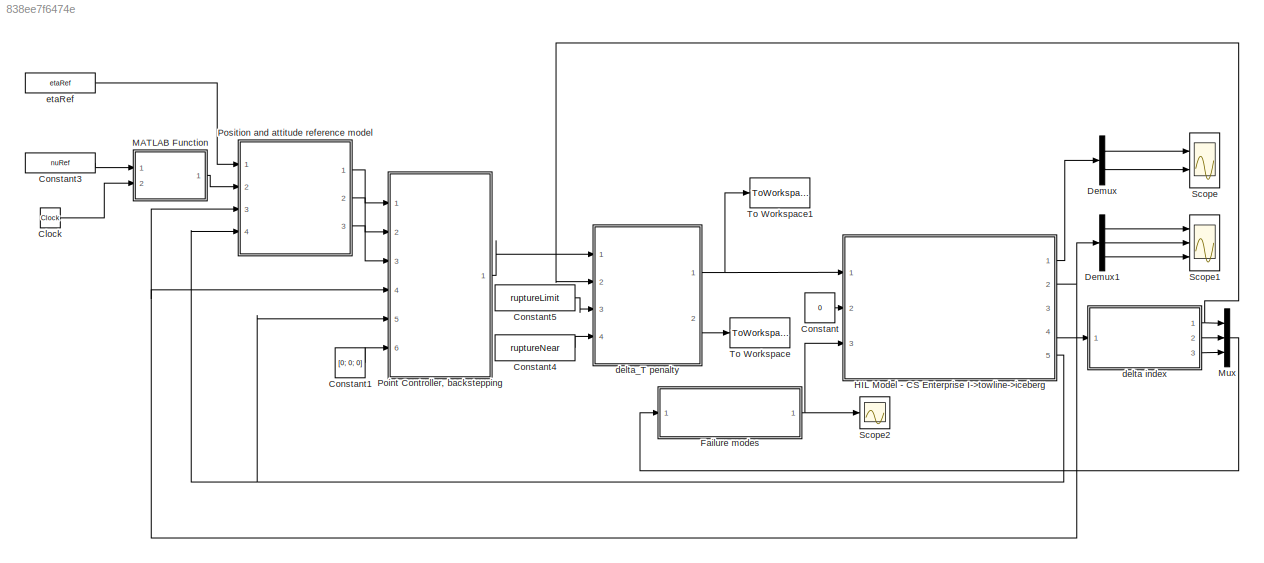
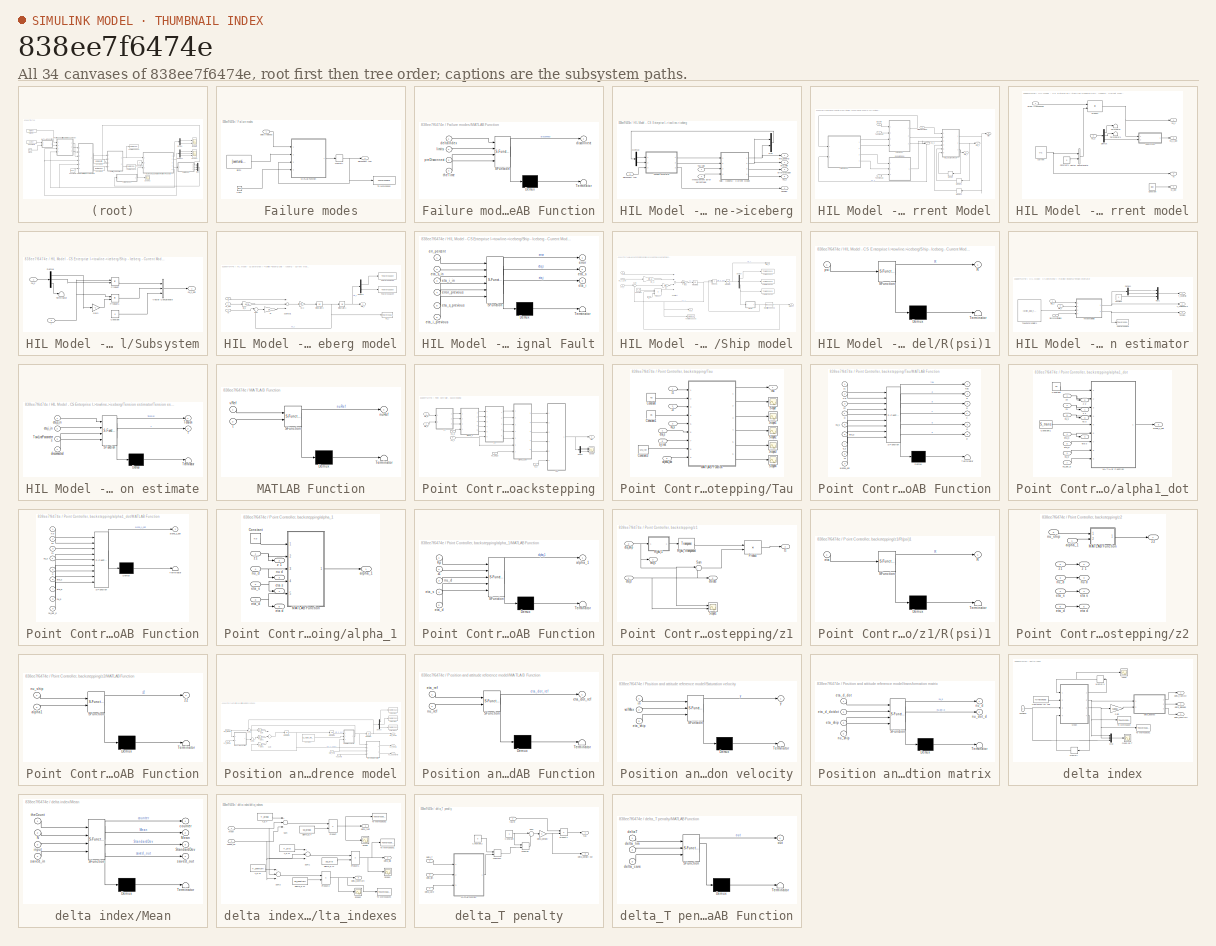
[diagram: thumbnail index - all 34 canvases of the model, root first then tree order]
MODEL slx_838ee7f6474e
KIND model
BLOCK [Clock] Clock
BLOCK [Constant] Constant
  Value = 0
BLOCK [Constant] Constant1
  Value = [0; 0; 0]
  VectorParams1D = off
BLOCK [Constant] Constant3
  Value = nuRef
  VectorParams1D = off
BLOCK [Constant] Constant4
  Value = ruptureNear
BLOCK [Constant] Constant5
  Value = ruptureLimit
BLOCK [Demux] Demux
  DisplayOption = bar
  Outputs = 2
  Ports = [1, 2]
BLOCK [Demux] Demux1
  DisplayOption = bar
  Outputs = 3
  Ports = [1, 3]
BLOCK [SubSystem] Failure modes
  FunctionWithSeparateData = off
  MaskHideContents = off
  MinAlgLoopOccurrences = off
  Opaque = off
  Ports = [1, 1]
  PropExecContextOutsideSubsystem = off
  RTWSystemCode = Auto
  RequestExecContextInheritance = off
BLOCK [Clock] Failure modes/Clock
BLOCK [SubSystem] Failure modes/MATLAB Function
  ErrorFcn = Stateflow.Translate.translate
  FunctionWithSeparateData = off
  MaskHideContents = off
  MinAlgLoopOccurrences = off
  Opaque = off
  PermitHierarchicalResolution = ExplicitOnly
  Ports = [4, 1]
  PropExecContextOutsideSubsystem = off
  RTWSystemCode = Auto
  RequestExecContextInheritance = off
  SFBlockType = MATLAB Function
  TreatAsAtomicUnit = on
BLOCK [Demux] Failure modes/MATLAB Function/ Demux 
  Outputs = 1
  Ports = [1, 1]
BLOCK [S-Function] Failure modes/MATLAB Function/ SFunction 
  EnableBusSupport = on
  FunctionName = sf_sfun
  PortCounts = [4 2]
  Ports = [4, 2]
  Tag = Stateflow S-Function HIL_model_experiments2 5
BLOCK [Terminator] Failure modes/MATLAB Function/ Terminator 
BLOCK [Inport] Failure modes/MATLAB Function/deltaIndex
  IconDisplay = Port number
BLOCK [Outport] Failure modes/MATLAB Function/disconnect
  IconDisplay = Port number
BLOCK [Inport] Failure modes/MATLAB Function/limits
  IconDisplay = Port number
  Port = 2
BLOCK [Inport] Failure modes/MATLAB Function/preDisconnect
  IconDisplay = Port number
  Port = 3
BLOCK [Inport] Failure modes/MATLAB Function/theTime
  IconDisplay = Port number
  Port = 4
BLOCK [Memory] Failure modes/Memory
BLOCK [ToWorkspace] Failure modes/To Workspace
  MaxDataPoints = inf
  Ports = [1]
  SampleTime = -1
  SaveFormat = Timeseries
  VariableName = isDisconnected
BLOCK [Inport] Failure modes/delta Indexes
  IconDisplay = Port number
BLOCK [Outport] Failure modes/disconnect tow
  IconDisplay = Port number
BLOCK [Constant] Failure modes/limits
  Value = [overturnLimit; ruptureLimit; slippageLimit]
  VectorParams1D = off
BLOCK [SubSystem] HIL Model - CS Enterprise I->towline->iceberg
  FunctionWithSeparateData = off
  MaskHideContents = off
  MinAlgLoopOccurrences = off
  Opaque = off
  Ports = [3, 5]
  PropExecContextOutsideSubsystem = off
  RTWSystemCode = Auto
  RequestExecContextInheritance = off
  VariantControl = Variant1
BLOCK [Demux] HIL Model - CS Enterprise I->towline->iceberg/Demux
  DisplayOption = bar
  Outputs = 2
  Ports = [1, 2]
BLOCK [Inport] HIL Model - CS Enterprise I->towline->iceberg/Measurement Error percentage
  IconDisplay = Port number
  Port = 2
BLOCK [Mux] HIL Model - CS Enterprise I->towline->iceberg/Mux
  DisplayOption = bar
  Inputs = [3; 2]
  Ports = [2, 1]
BLOCK [SubSystem] HIL Model - CS Enterprise I->towline->iceberg/Ship - Iceberg - Current Model
  FunctionWithSeparateData = off
  MaskHideContents = off
  MinAlgLoopOccurrences = off
  Opaque = off
  Ports = [4, 4]
  PropExecContextOutsideSubsystem = off
  RTWSystemCode = Auto
  RequestExecContextInheritance = off
BLOCK [SubSystem] HIL Model - CS Enterprise I->towline->iceberg/Ship - Iceberg - Current Model/Current model
  FunctionWithSeparateData = off
  MaskHideContents = off
  MinAlgLoopOccurrences = off
  Opaque = off
  Ports = [2, 4]
  PropExecContextOutsideSubsystem = off
  RTWSystemCode = Auto
  RequestExecContextInheritance = off
BLOCK [Constant] HIL Model - CS Enterprise I->towline->iceberg/Ship - Iceberg - Current Model/Current model/Constant
  Value = [0; 0]
  VectorParams1D = off
BLOCK [Constant] HIL Model - CS Enterprise I->towline->iceberg/Ship - Iceberg - Current Model/Current model/Constant1
  Value = 0
BLOCK [Demux] HIL Model - CS Enterprise I->towline->iceberg/Ship - Iceberg - Current Model/Current model/Demux
  DisplayOption = bar
  Outputs = 3
  Ports = [1, 3]
BLOCK [Product] HIL Model - CS Enterprise I->towline->iceberg/Ship - Iceberg - Current Model/Current model/Product
  InputSameDT = off
  Multiplication = Matrix(*)
  OutDataTypeStr = Inherit: Inherit via internal rule
  Ports = [2, 1]
  RndMeth = Floor
  SaturateOnIntegerOverflow = off
BLOCK [Inport] HIL Model - CS Enterprise I->towline->iceberg/Ship - Iceberg - Current Model/Current model/R(psi) transposed
  IconDisplay = Port number
BLOCK [SubSystem] HIL Model - CS Enterprise I->towline->iceberg/Ship - Iceberg - Current Model/Current model/Subsystem
  FunctionWithSeparateData = off
  MaskHideContents = off
  MinAlgLoopOccurrences = off
  Opaque = off
  Ports = [2, 1]
  PropExecContextOutsideSubsystem = off
  RTWSystemCode = Auto
  RequestExecContextInheritance = off
BLOCK [Constant] HIL Model - CS Enterprise I->towline->iceberg/Ship - Iceberg - Current Model/Current model/Subsystem/Constant
  Value = 0
BLOCK [Demux] HIL Model - CS Enterprise I->towline->iceberg/Ship - Iceberg - Current Model/Current model/Subsystem/Demux
  DisplayOption = bar
  Outputs = 3
  Ports = [1, 3]
BLOCK [Gain] HIL Model - CS Enterprise I->towline->iceberg/Ship - Iceberg - Current Model/Current model/Subsystem/Gain
  Gain = -1
  OutDataTypeStr = Inherit: Inherit via internal rule
  ParamDataTypeStr = Inherit: Inherit via internal rule
  SaturateOnIntegerOverflow = off
BLOCK [Product] HIL Model - CS Enterprise I->towline->iceberg/Ship - Iceberg - Current Model/Current model/Subsystem/Product
  InputSameDT = off
  OutDataTypeStr = Inherit: Inherit via internal rule
  Ports = [2, 1]
  RndMeth = Floor
  SaturateOnIntegerOverflow = off
BLOCK [Product] HIL Model - CS Enterprise I->towline->iceberg/Ship - Iceberg - Current Model/Current model/Subsystem/Product1
  InputSameDT = off
  OutDataTypeStr = Inherit: Inherit via internal rule
  Ports = [2, 1]
  RndMeth = Floor
  SaturateOnIntegerOverflow = off
BLOCK [Terminator] HIL Model - CS Enterprise I->towline->iceberg/Ship - Iceberg - Current Model/Current model/Subsystem/Terminator
BLOCK [Concatenate] HIL Model - CS Enterprise I->towline->iceberg/Ship - Iceberg - Current Model/Current model/Subsystem/Vector Concatenate
  Mode = Multidimensional array
  NumInputs = 3
  Ports = [3, 1]
BLOCK [Inport] HIL Model - CS Enterprise I->towline->iceberg/Ship - Iceberg - Current Model/Current model/Subsystem/nu_c
  IconDisplay = Port number
BLOCK [Outport] HIL Model - CS Enterprise I->towline->iceberg/Ship - Iceberg - Current Model/Current model/Subsystem/nu_c_dot
  IconDisplay = Port number
BLOCK [Inport] HIL Model - CS Enterprise I->towline->iceberg/Ship - Iceberg - Current Model/Current model/Subsystem/r
  IconDisplay = Port number
  Port = 2
BLOCK [Terminator] HIL Model - CS Enterprise I->towline->iceberg/Ship - Iceberg - Current Model/Current model/Terminator
BLOCK [Terminator] HIL Model - CS Enterprise I->towline->iceberg/Ship - Iceberg - Current Model/Current model/Terminator1
BLOCK [Outport] HIL Model - CS Enterprise I->towline->iceberg/Ship - Iceberg - Current Model/Current model/Vc
  IconDisplay = Port number
  Port = 3
BLOCK [Outport] HIL Model - CS Enterprise I->towline->iceberg/Ship - Iceberg - Current Model/Current model/Vc_dot
  IconDisplay = Port number
  Port = 4
BLOCK [Concatenate] HIL Model - CS Enterprise I->towline->iceberg/Ship - Iceberg - Current Model/Current model/Vector Concatenate
  Mode = Multidimensional array
  Ports = [2, 1]
BLOCK [Constant] HIL Model - CS Enterprise I->towline->iceberg/Ship - Iceberg - Current Model/Current model/current
  Value = Vc
  VectorParams1D = off
BLOCK [Outport] HIL Model - CS Enterprise I->towline->iceberg/Ship - Iceberg - Current Model/Current model/nu_c
  IconDisplay = Port number
BLOCK [Outport] HIL Model - CS Enterprise I->towline->iceberg/Ship - Iceberg - Current Model/Current model/nu_c_dot
  IconDisplay = Port number
  Port = 2
BLOCK [Inport] HIL Model - CS Enterprise I->towline->iceberg/Ship - Iceberg - Current Model/Current model/nu_s
  IconDisplay = Port number
  Port = 2
BLOCK [SubSystem] HIL Model - CS Enterprise I->towline->iceberg/Ship - Iceberg - Current Model/Iceberg model
  FunctionWithSeparateData = off
  MaskHideContents = off
  MinAlgLoopOccurrences = off
  Opaque = off
  Ports = [3, 1]
  PropExecContextOutsideSubsystem = off
  RTWSystemCode = Auto
  RequestExecContextInheritance = off
BLOCK [Demux] HIL Model - CS Enterprise I->towline->iceberg/Ship - Iceberg - Current Model/Iceberg model/Demux1
  DisplayOption = bar
  Outputs = 2
  Ports = [1, 2]
BLOCK [Gain] HIL Model - CS Enterprise I->towline->iceberg/Ship - Iceberg - Current Model/Iceberg model/Di
  Gain = Di
  Multiplication = Matrix(K*u) (u vector)
  OutDataTypeStr = Inherit: Inherit via internal rule
  ParamDataTypeStr = Inherit: Inherit via internal rule
  SaturateOnIntegerOverflow = off
BLOCK [Integrator] HIL Model - CS Enterprise I->towline->iceberg/Ship - Iceberg - Current Model/Iceberg model/Integrator1
  InitialCondition = Piceberg
  Ports = [1, 1]
BLOCK [Integrator] HIL Model - CS Enterprise I->towline->iceberg/Ship - Iceberg - Current Model/Iceberg model/Integrator3
  InitialCondition = [0;0]
  Ports = [1, 1]
BLOCK [Gain] HIL Model - CS Enterprise I->towline->iceberg/Ship - Iceberg - Current Model/Iceberg model/M-1 i
  Gain = inv(Mi_rb + Mi_a)
  Multiplication = Matrix(K*u)
  OutDataTypeStr = Inherit: Inherit via internal rule
  ParamDataTypeStr = Inherit: Inherit via internal rule
  SaturateOnIntegerOverflow = off
BLOCK [Gain] HIL Model - CS Enterprise I->towline->iceberg/Ship - Iceberg - Current Model/Iceberg model/Mi_a
  Gain = Mi_a
  Multiplication = Matrix(K*u) (u vector)
  OutDataTypeStr = Inherit: Inherit via internal rule
  ParamDataTypeStr = Inherit: Inherit via internal rule
  SaturateOnIntegerOverflow = off
BLOCK [Sum] HIL Model - CS Enterprise I->towline->iceberg/Ship - Iceberg - Current Model/Iceberg model/Subtract1
  InputSameDT = off
  Inputs = ++-
  OutDataTypeStr = Inherit: Inherit via internal rule
  Ports = [3, 1]
  SaturateOnIntegerOverflow = off
BLOCK [Sum] HIL Model - CS Enterprise I->towline->iceberg/Ship - Iceberg - Current Model/Iceberg model/Sum
  IconShape = round
  InputSameDT = off
  Inputs = |-+
  OutDataTypeStr = Inherit: Inherit via internal rule
  Ports = [2, 1]
  SaturateOnIntegerOverflow = off
BLOCK [Inport] HIL Model - CS Enterprise I->towline->iceberg/Ship - Iceberg - Current Model/Iceberg model/T
  IconDisplay = Port number
  Port = 3
BLOCK [ToWorkspace] HIL Model - CS Enterprise I->towline->iceberg/Ship - Iceberg - Current Model/Iceberg model/To Workspace3
  MaxDataPoints = inf
  Ports = [1]
  SampleTime = -1
  SaveFormat = Timeseries
  VariableName = x_i
BLOCK [ToWorkspace] HIL Model - CS Enterprise I->towline->iceberg/Ship - Iceberg - Current Model/Iceberg model/To Workspace4
  MaxDataPoints = inf
  Ports = [1]
  SampleTime = -1
  SaveFormat = Timeseries
  VariableName = y_i
BLOCK [Inport] HIL Model - CS Enterprise I->towline->iceberg/Ship - Iceberg - Current Model/Iceberg model/Vc
  IconDisplay = Port number
BLOCK [Inport] HIL Model - CS Enterprise I->towline->iceberg/Ship - Iceberg - Current Model/Iceberg model/Vc_dot
  IconDisplay = Port number
  Port = 2
BLOCK [Outport] HIL Model - CS Enterprise I->towline->iceberg/Ship - Iceberg - Current Model/Iceberg model/eta_i
  IconDisplay = Port number
BLOCK [ToWorkspace] HIL Model - CS Enterprise I->towline->iceberg/Ship - Iceberg - Current Model/Iceberg model/nu_i
  MaxDataPoints = inf
  Ports = [1]
  SampleTime = -1
  SaveFormat = Timeseries
  VariableName = nu_i
BLOCK [SubSystem] HIL Model - CS Enterprise I->towline->iceberg/Ship - Iceberg - Current Model/MC Lab Signal Fault
  ErrorFcn = Stateflow.Translate.translate
  FunctionWithSeparateData = off
  MaskHideContents = off
  MinAlgLoopOccurrences = off
  Opaque = off
  PermitHierarchicalResolution = ExplicitOnly
  Ports = [6, 3]
  PropExecContextOutsideSubsystem = off
  RTWSystemCode = Auto
  RequestExecContextInheritance = off
  SFBlockType = MATLAB Function
  TreatAsAtomicUnit = on
BLOCK [Demux] HIL Model - CS Enterprise I->towline->iceberg/Ship - Iceberg - Current Model/MC Lab Signal Fault/ Demux 
  Outputs = 1
  Ports = [1, 1]
BLOCK [S-Function] HIL Model - CS Enterprise I->towline->iceberg/Ship - Iceberg - Current Model/MC Lab Signal Fault/ SFunction 
  EnableBusSupport = on
  FunctionName = sf_sfun
  PortCounts = [6 4]
  Ports = [6, 4]
  Tag = Stateflow S-Function HIL_model_experiments2 1
BLOCK [Terminator] HIL Model - CS Enterprise I->towline->iceberg/Ship - Iceberg - Current Model/MC Lab Signal Fault/ Terminator 
BLOCK [Inport] HIL Model - CS Enterprise I->towline->iceberg/Ship - Iceberg - Current Model/MC Lab Signal Fault/err_percent
  IconDisplay = Port number
BLOCK [Outport] HIL Model - CS Enterprise I->towline->iceberg/Ship - Iceberg - Current Model/MC Lab Signal Fault/error
  IconDisplay = Port number
BLOCK [Inport] HIL Model - CS Enterprise I->towline->iceberg/Ship - Iceberg - Current Model/MC Lab Signal Fault/error_previous
  IconDisplay = Port number
  Port = 4
BLOCK [Outport] HIL Model - CS Enterprise I->towline->iceberg/Ship - Iceberg - Current Model/MC Lab Signal Fault/eta_i
  IconDisplay = Port number
  Port = 3
BLOCK [Inport] HIL Model - CS Enterprise I->towline->iceberg/Ship - Iceberg - Current Model/MC Lab Signal Fault/eta_i_in
  IconDisplay = Port number
  Port = 3
BLOCK [Inport] HIL Model - CS Enterprise I->towline->iceberg/Ship - Iceberg - Current Model/MC Lab Signal Fault/eta_i_previous
  IconDisplay = Port number
  Port = 6
BLOCK [Outport] HIL Model - CS Enterprise I->towline->iceberg/Ship - Iceberg - Current Model/MC Lab Signal Fault/eta_s
  IconDisplay = Port number
  Port = 2
BLOCK [Inport] HIL Model - CS Enterprise I->towline->iceberg/Ship - Iceberg - Current Model/MC Lab Signal Fault/eta_s_in
  IconDisplay = Port number
  Port = 2
BLOCK [Inport] HIL Model - CS Enterprise I->towline->iceberg/Ship - Iceberg - Current Model/MC Lab Signal Fault/eta_s_previous
  IconDisplay = Port number
  Port = 5
BLOCK [Memory] HIL Model - CS Enterprise I->towline->iceberg/Ship - Iceberg - Current Model/Memory
  X0 = [0; 0]
BLOCK [Memory] HIL Model - CS Enterprise I->towline->iceberg/Ship - Iceberg - Current Model/Memory1
  X0 = [0; 0; 0]
BLOCK [Memory] HIL Model - CS Enterprise I->towline->iceberg/Ship - Iceberg - Current Model/Memory2
BLOCK [SubSystem] HIL Model - CS Enterprise I->towline->iceberg/Ship - Iceberg - Current Model/Ship model
  FunctionWithSeparateData = off
  MaskHideContents = off
  MinAlgLoopOccurrences = off
  Opaque = off
  Ports = [4, 3]
  PropExecContextOutsideSubsystem = off
  RTWSystemCode = Auto
  RequestExecContextInheritance = off
BLOCK [Constant] HIL Model - CS Enterprise I->towline->iceberg/Ship - Iceberg - Current Model/Ship model/Constant
  Value = K_M
  VectorParams1D = off
BLOCK [Demux] HIL Model - CS Enterprise I->towline->iceberg/Ship - Iceberg - Current Model/Ship model/Demux
  DisplayOption = bar
  Outputs = 3
  Ports = [1, 3]
BLOCK [Gain] HIL Model - CS Enterprise I->towline->iceberg/Ship - Iceberg - Current Model/Ship model/Ds
  Gain = Ds
  Multiplication = Matrix(K*u) (u vector)
  OutDataTypeStr = Inherit: Inherit via internal rule
  ParamDataTypeStr = Inherit: Inherit via internal rule
  SaturateOnIntegerOverflow = off
BLOCK [Integrator] HIL Model - CS Enterprise I->towline->iceberg/Ship - Iceberg - Current Model/Ship model/Integrator
  InitialCondition = Pship
  Ports = [1, 1]
BLOCK [Integrator] HIL Model - CS Enterprise I->towline->iceberg/Ship - Iceberg - Current Model/Ship model/Integrator2
  InitialCondition = [0; 0; 0]
  Ports = [1, 1]
BLOCK [Gain] HIL Model - CS Enterprise I->towline->iceberg/Ship - Iceberg - Current Model/Ship model/M-1 s
  Gain = inv(Ms_rb + Ms_a)
  Multiplication = Matrix(K*u) (u vector)
  OutDataTypeStr = Inherit: Inherit via internal rule
  ParamDataTypeStr = Inherit: Inherit via internal rule
  SaturateOnIntegerOverflow = off
BLOCK [Gain] HIL Model - CS Enterprise I->towline->iceberg/Ship - Iceberg - Current Model/Ship model/Ms_a
  Gain = Ms_a
  Multiplication = Matrix(K*u) (u vector)
  OutDataTypeStr = Inherit: Inherit via internal rule
  ParamDataTypeStr = Inherit: Inherit via internal rule
  SaturateOnIntegerOverflow = off
BLOCK [Product] HIL Model - CS Enterprise I->towline->iceberg/Ship - Iceberg - Current Model/Ship model/Product
  InputSameDT = off
  Inputs = ***
  Multiplication = Matrix(*)
  OutDataTypeStr = Inherit: Inherit via internal rule
  Ports = [3, 1]
  RndMeth = Floor
  SaturateOnIntegerOverflow = off
BLOCK [Product] HIL Model - CS Enterprise I->towline->iceberg/Ship - Iceberg - Current Model/Ship model/Product1
  InputSameDT = off
  Multiplication = Matrix(*)
  OutDataTypeStr = Inherit: Inherit via internal rule
  Ports = [2, 1]
  RndMeth = Floor
  SaturateOnIntegerOverflow = off
BLOCK [Reference] HIL Model - CS Enterprise I->towline->iceberg/Ship - Iceberg - Current Model/Ship model/R(psi) transposed  REF=dspmtrx3/Transpose
  Hermitian = off
  Ports = [1, 1]
  SourceBlock = dspmtrx3/Transpose
  SourceType = Transpose
  overflowFlag = off
BLOCK [SubSystem] HIL Model - CS Enterprise I->towline->iceberg/Ship - Iceberg - Current Model/Ship model/R(psi)1
  ErrorFcn = Stateflow.Translate.translate
  FunctionWithSeparateData = off
  MaskHideContents = off
  MinAlgLoopOccurrences = off
  Opaque = off
  PermitHierarchicalResolution = ExplicitOnly
  Ports = [1, 1]
  PropExecContextOutsideSubsystem = off
  RTWSystemCode = Auto
  RequestExecContextInheritance = off
  SFBlockType = MATLAB Function
  TreatAsAtomicUnit = on
BLOCK [Demux] HIL Model - CS Enterprise I->towline->iceberg/Ship - Iceberg - Current Model/Ship model/R(psi)1/ Demux 
  Outputs = 1
  Ports = [1, 1]
BLOCK [S-Function] HIL Model - CS Enterprise I->towline->iceberg/Ship - Iceberg - Current Model/Ship model/R(psi)1/ SFunction 
  EnableBusSupport = on
  FunctionName = sf_sfun
  PortCounts = [1 2]
  Ports = [1, 2]
  Tag = Stateflow S-Function HIL_model_experiments2 2
BLOCK [Terminator] HIL Model - CS Enterprise I->towline->iceberg/Ship - Iceberg - Current Model/Ship model/R(psi)1/ Terminator 
BLOCK [Outport] HIL Model - CS Enterprise I->towline->iceberg/Ship - Iceberg - Current Model/Ship model/R(psi)1/R
  IconDisplay = Port number
BLOCK [Inport] HIL Model - CS Enterprise I->towline->iceberg/Ship - Iceberg - Current Model/Ship model/R(psi)1/psi
  IconDisplay = Port number
BLOCK [Outport] HIL Model - CS Enterprise I->towline->iceberg/Ship - Iceberg - Current Model/Ship model/R(psi)^T
  IconDisplay = Port number
BLOCK [Sum] HIL Model - CS Enterprise I->towline->iceberg/Ship - Iceberg - Current Model/Ship model/Subtract
  InputSameDT = off
  Inputs = ++--
  OutDataTypeStr = Inherit: Inherit via internal rule
  Ports = [4, 1]
  SaturateOnIntegerOverflow = off
BLOCK [Sum] HIL Model - CS Enterprise I->towline->iceberg/Ship - Iceberg - Current Model/Ship model/Sum
  IconShape = round
  InputSameDT = off
  Inputs = |-+
  OutDataTypeStr = Inherit: Inherit via internal rule
  Ports = [2, 1]
  SaturateOnIntegerOverflow = off
BLOCK [Inport] HIL Model - CS Enterprise I->towline->iceberg/Ship - Iceberg - Current Model/Ship model/T
  IconDisplay = Port number
  Port = 2
BLOCK [Inport] HIL Model - CS Enterprise I->towline->iceberg/Ship - Iceberg - Current Model/Ship model/Tau
  IconDisplay = Port number
BLOCK [ToWorkspace] HIL Model - CS Enterprise I->towline->iceberg/Ship - Iceberg - Current Model/Ship model/To Workspace
  MaxDataPoints = inf
  Ports = [1]
  SampleTime = -1
  SaveFormat = Timeseries
  VariableName = x_s
BLOCK [ToWorkspace] HIL Model - CS Enterprise I->towline->iceberg/Ship - Iceberg - Current Model/Ship model/To Workspace1
  MaxDataPoints = inf
  Ports = [1]
  SampleTime = -1
  SaveFormat = Timeseries
  VariableName = y_s
BLOCK [ToWorkspace] HIL Model - CS Enterprise I->towline->iceberg/Ship - Iceberg - Current Model/Ship model/To Workspace2
  MaxDataPoints = inf
  Ports = [1]
  SampleTime = -1
  SaveFormat = Timeseries
  VariableName = psi_s
BLOCK [ToWorkspace] HIL Model - CS Enterprise I->towline->iceberg/Ship - Iceberg - Current Model/Ship model/To Workspace5
  MaxDataPoints = inf
  Ports = [1]
  SampleTime = -1
  SaveFormat = Timeseries
  VariableName = nu_s
BLOCK [Outport] HIL Model - CS Enterprise I->towline->iceberg/Ship - Iceberg - Current Model/Ship model/eta_s
  IconDisplay = Port number
  Port = 2
BLOCK [Inport] HIL Model - CS Enterprise I->towline->iceberg/Ship - Iceberg - Current Model/Ship model/nu_c
  IconDisplay = Port number
  Port = 3
BLOCK [Inport] HIL Model - CS Enterprise I->towline->iceberg/Ship - Iceberg - Current Model/Ship model/nu_c_dot
  IconDisplay = Port number
  Port = 4
BLOCK [Outport] HIL Model - CS Enterprise I->towline->iceberg/Ship - Iceberg - Current Model/Ship model/nu_s
  IconDisplay = Port number
  Port = 3
BLOCK [Inport] HIL Model - CS Enterprise I->towline->iceberg/Ship - Iceberg - Current Model/Tension 2D
  IconDisplay = Port number
  Port = 2
BLOCK [Inport] HIL Model - CS Enterprise I->towline->iceberg/Ship - Iceberg - Current Model/Tension 3D
  IconDisplay = Port number
BLOCK [Outport] HIL Model - CS Enterprise I->towline->iceberg/Ship - Iceberg - Current Model/error
  IconDisplay = Port number
  Port = 3
BLOCK [Inport] HIL Model - CS Enterprise I->towline->iceberg/Ship - Iceberg - Current Model/error percentage
  IconDisplay = Port number
  Port = 4
BLOCK [Outport] HIL Model - CS Enterprise I->towline->iceberg/Ship - Iceberg - Current Model/eta_i
  IconDisplay = Port number
BLOCK [Outport] HIL Model - CS Enterprise I->towline->iceberg/Ship - Iceberg - Current Model/eta_s
  IconDisplay = Port number
  Port = 2
BLOCK [Outport] HIL Model - CS Enterprise I->towline->iceberg/Ship - Iceberg - Current Model/nu_s
  IconDisplay = Port number
  Port = 4
BLOCK [Inport] HIL Model - CS Enterprise I->towline->iceberg/Ship - Iceberg - Current Model/tau ship
  IconDisplay = Port number
  Port = 3
BLOCK [Inport] HIL Model - CS Enterprise I->towline->iceberg/Tau ship
  IconDisplay = Port number
BLOCK [Outport] HIL Model - CS Enterprise I->towline->iceberg/Tension
  IconDisplay = Port number
  Port = 4
BLOCK [SubSystem] HIL Model - CS Enterprise I->towline->iceberg/Tension estimator
  FunctionWithSeparateData = off
  MaskHideContents = off
  MinAlgLoopOccurrences = off
  Opaque = off
  Ports = [3, 3]
  PropExecContextOutsideSubsystem = off
  RTWSystemCode = Auto
  RequestExecContextInheritance = off
BLOCK [Constant] HIL Model - CS Enterprise I->towline->iceberg/Tension estimator/Constant
  Value = 0
BLOCK [Demux] HIL Model - CS Enterprise I->towline->iceberg/Tension estimator/Demux1
  DisplayOption = bar
  Outputs = 2
  Ports = [1, 2]
BLOCK [Inport] HIL Model - CS Enterprise I->towline->iceberg/Tension estimator/Disconnect towline
  IconDisplay = Port number
  Port = 3
BLOCK [Mux] HIL Model - CS Enterprise I->towline->iceberg/Tension estimator/Mux1
  DisplayOption = bar
  Inputs = 3
  Ports = [3, 1]
BLOCK [Outport] HIL Model - CS Enterprise I->towline->iceberg/Tension estimator/T_2dof iceberg
  IconDisplay = Port number
  Port = 2
BLOCK [Outport] HIL Model - CS Enterprise I->towline->iceberg/Tension estimator/T_3dof ship
  IconDisplay = Port number
BLOCK [Outport] HIL Model - CS Enterprise I->towline->iceberg/Tension estimator/Tension
  IconDisplay = Port number
  Port = 3
BLOCK [SubSystem] HIL Model - CS Enterprise I->towline->iceberg/Tension estimator/Tension estimate
  ErrorFcn = Stateflow.Translate.translate
  FunctionWithSeparateData = off
  MaskHideContents = off
  MinAlgLoopOccurrences = off
  Opaque = off
  PermitHierarchicalResolution = ExplicitOnly
  Ports = [4, 2]
  PropExecContextOutsideSubsystem = off
  RTWSystemCode = Auto
  RequestExecContextInheritance = off
  SFBlockType = MATLAB Function
  TreatAsAtomicUnit = on
BLOCK [Demux] HIL Model - CS Enterprise I->towline->iceberg/Tension estimator/Tension estimate/ Demux 
  Outputs = 1
  Ports = [1, 1]
BLOCK [S-Function] HIL Model - CS Enterprise I->towline->iceberg/Tension estimator/Tension estimate/ SFunction 
  EnableBusSupport = on
  FunctionName = sf_sfun
  PortCounts = [4 3]
  Ports = [4, 3]
  Tag = Stateflow S-Function HIL_model_experiments2 4
BLOCK [Terminator] HIL Model - CS Enterprise I->towline->iceberg/Tension estimator/Tension estimate/ Terminator 
BLOCK [Outport] HIL Model - CS Enterprise I->towline->iceberg/Tension estimator/Tension estimate/T
  IconDisplay = Port number
  Port = 2
BLOCK [Outport] HIL Model - CS Enterprise I->towline->iceberg/Tension estimator/Tension estimate/Tension
  IconDisplay = Port number
BLOCK [Inport] HIL Model - CS Enterprise I->towline->iceberg/Tension estimator/Tension estimate/TowLineParameters
  IconDisplay = Port number
  Port = 3
BLOCK [Inport] HIL Model - CS Enterprise I->towline->iceberg/Tension estimator/Tension estimate/disconnected
  IconDisplay = Port number
  Port = 4
BLOCK [Inport] HIL Model - CS Enterprise I->towline->iceberg/Tension estimator/Tension estimate/eta_i_in
  IconDisplay = Port number
  Port = 2
BLOCK [Inport] HIL Model - CS Enterprise I->towline->iceberg/Tension estimator/Tension estimate/eta_s_in
  IconDisplay = Port number
BLOCK [ToWorkspace] HIL Model - CS Enterprise I->towline->iceberg/Tension estimator/To Workspace
  MaxDataPoints = inf
  Ports = [1]
  SampleTime = -1
  SaveFormat = Timeseries
  VariableName = tension
BLOCK [Constant] HIL Model - CS Enterprise I->towline->iceberg/Tension estimator/TowLine Parameters
  Value = [Dist_spv_rfp; TowLineLength; K_tow]
  VectorParams1D = off
BLOCK [Inport] HIL Model - CS Enterprise I->towline->iceberg/Tension estimator/eta_i
  IconDisplay = Port number
  Port = 2
BLOCK [Inport] HIL Model - CS Enterprise I->towline->iceberg/Tension estimator/eta_s
  IconDisplay = Port number
BLOCK [Inport] HIL Model - CS Enterprise I->towline->iceberg/disconnect tow
  IconDisplay = Port number
  Port = 3
BLOCK [Outport] HIL Model - CS Enterprise I->towline->iceberg/errorMessage
  IconDisplay = Port number
  Port = 3
BLOCK [Outport] HIL Model - CS Enterprise I->towline->iceberg/eta_iceberg
  IconDisplay = Port number
BLOCK [Outport] HIL Model - CS Enterprise I->towline->iceberg/eta_ship
  IconDisplay = Port number
  Port = 2
BLOCK [Outport] HIL Model - CS Enterprise I->towline->iceberg/nu_s
  IconDisplay = Port number
  Port = 5
BLOCK [SubSystem] MATLAB Function
  ErrorFcn = Stateflow.Translate.translate
  FunctionWithSeparateData = off
  MaskHideContents = off
  MinAlgLoopOccurrences = off
  Opaque = off
  PermitHierarchicalResolution = ExplicitOnly
  Ports = [2, 1]
  PropExecContextOutsideSubsystem = off
  RTWSystemCode = Auto
  RequestExecContextInheritance = off
  SFBlockType = MATLAB Function
  TreatAsAtomicUnit = on
BLOCK [Demux] MATLAB Function/ Demux 
  Outputs = 1
  Ports = [1, 1]
BLOCK [S-Function] MATLAB Function/ SFunction 
  EnableBusSupport = on
  FunctionName = sf_sfun
  PortCounts = [2 2]
  Ports = [2, 2]
  Tag = Stateflow S-Function HIL_model_experiments2 14
BLOCK [Terminator] MATLAB Function/ Terminator 
BLOCK [Outport] MATLAB Function/nuRef
  IconDisplay = Port number
BLOCK [Inport] MATLAB Function/t
  IconDisplay = Port number
  Port = 2
BLOCK [Inport] MATLAB Function/vRef
  IconDisplay = Port number
BLOCK [Mux] Mux
  DisplayOption = bar
  Inputs = 3
  Ports = [3, 1]
BLOCK [SubSystem] Point Controller,  backstepping
  FunctionWithSeparateData = off
  MaskHideContents = off
  MinAlgLoopOccurrences = off
  Opaque = off
  Ports = [6, 1]
  PropExecContextOutsideSubsystem = off
  RTWSystemCode = Auto
  RequestExecContextInheritance = off
BLOCK [Demux] Point Controller,  backstepping/Demux
  DisplayOption = bar
  Outputs = 3
  Ports = [1, 3]
BLOCK [Scope] Point Controller,  backstepping/Scope
  DataFormat = StructureWithTime
  Floating = off
  LimitDataPoints = off
  MaxDataPoints = 10000
  NumInputPorts = 3
  Ports = [3]
  SampleTime = 0
  SaveName = ScopeData5
  ShowLegends = off
  TimeRange = 400
  YMax = 0.777~0.028~-0.00195
  YMin = 0.776~0.0235~-0.00225
  ZoomMode = xonly
BLOCK [SubSystem] Point Controller,  backstepping/Tau
  FunctionWithSeparateData = off
  MaskHideContents = off
  MinAlgLoopOccurrences = off
  Opaque = off
  Ports = [6, 1]
  PropExecContextOutsideSubsystem = off
  RTWSystemCode = Auto
  RequestExecContextInheritance = off
BLOCK [Constant] Point Controller,  backstepping/Tau/Constant
  Value = Kd
  VectorParams1D = off
BLOCK [Constant] Point Controller,  backstepping/Tau/Constant1
  Value = Ds
  VectorParams1D = off
BLOCK [Constant] Point Controller,  backstepping/Tau/Constant3
  Value = Ms_tot
  VectorParams1D = off
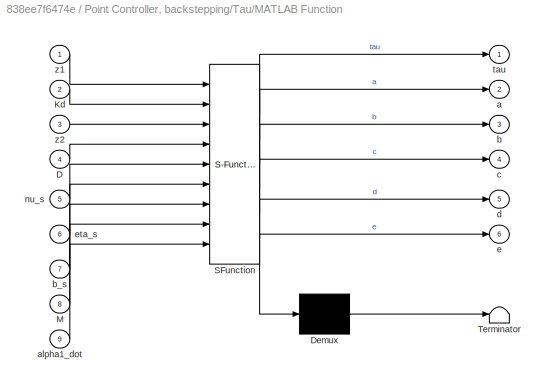
BLOCK [SubSystem] Point Controller,  backstepping/Tau/MATLAB Function
  ErrorFcn = Stateflow.Translate.translate
  FunctionWithSeparateData = off
  MaskHideContents = off
  MinAlgLoopOccurrences = off
  Opaque = off
  PermitHierarchicalResolution = ExplicitOnly
  Ports = [9, 6]
  PropExecContextOutsideSubsystem = off
  RTWSystemCode = Auto
  RequestExecContextInheritance = off
  SFBlockType = MATLAB Function
  TreatAsAtomicUnit = on
BLOCK [Demux] Point Controller,  backstepping/Tau/MATLAB Function/ Demux 
  Outputs = 1
  Ports = [1, 1]
BLOCK [S-Function] Point Controller,  backstepping/Tau/MATLAB Function/ SFunction 
  EnableBusSupport = on
  FunctionName = sf_sfun
  PortCounts = [9 7]
  Ports = [9, 7]
  Tag = Stateflow S-Function HIL_model_experiments2 8
BLOCK [Terminator] Point Controller,  backstepping/Tau/MATLAB Function/ Terminator 
BLOCK [Inport] Point Controller,  backstepping/Tau/MATLAB Function/D
  IconDisplay = Port number
  Port = 4
BLOCK [Inport] Point Controller,  backstepping/Tau/MATLAB Function/Kd
  IconDisplay = Port number
  Port = 2
BLOCK [Inport] Point Controller,  backstepping/Tau/MATLAB Function/M
  IconDisplay = Port number
  Port = 8
BLOCK [Outport] Point Controller,  backstepping/Tau/MATLAB Function/a
  IconDisplay = Port number
  Port = 2
BLOCK [Inport] Point Controller,  backstepping/Tau/MATLAB Function/alpha1_dot
  IconDisplay = Port number
  Port = 9
BLOCK [Outport] Point Controller,  backstepping/Tau/MATLAB Function/b
  IconDisplay = Port number
  Port = 3
BLOCK [Inport] Point Controller,  backstepping/Tau/MATLAB Function/b_s
  IconDisplay = Port number
  Port = 7
BLOCK [Outport] Point Controller,  backstepping/Tau/MATLAB Function/c
  IconDisplay = Port number
  Port = 4
BLOCK [Outport] Point Controller,  backstepping/Tau/MATLAB Function/d
  IconDisplay = Port number
  Port = 5
BLOCK [Outport] Point Controller,  backstepping/Tau/MATLAB Function/e
  IconDisplay = Port number
  Port = 6
BLOCK [Inport] Point Controller,  backstepping/Tau/MATLAB Function/eta_s
  IconDisplay = Port number
  Port = 6
BLOCK [Inport] Point Controller,  backstepping/Tau/MATLAB Function/nu_s
  IconDisplay = Port number
  Port = 5
BLOCK [Outport] Point Controller,  backstepping/Tau/MATLAB Function/tau
  IconDisplay = Port number
BLOCK [Inport] Point Controller,  backstepping/Tau/MATLAB Function/z1
  IconDisplay = Port number
BLOCK [Inport] Point Controller,  backstepping/Tau/MATLAB Function/z2
  IconDisplay = Port number
  Port = 3
BLOCK [Scope] Point Controller,  backstepping/Tau/Scope
  DataFormat = StructureWithTime
  Floating = off
  NumInputPorts = 1
  Ports = [1]
  SampleTime = 0
  SaveName = ScopeData6
  ShowLegends = off
BLOCK [Scope] Point Controller,  backstepping/Tau/Scope1
  DataFormat = StructureWithTime
  Floating = off
  NumInputPorts = 1
  Ports = [1]
  SampleTime = 0
  SaveName = ScopeData7
  ShowLegends = off
  YMax = 0.1
  YMin = -0.02
BLOCK [Scope] Point Controller,  backstepping/Tau/Scope2
  DataFormat = StructureWithTime
  Floating = off
  NumInputPorts = 1
  Ports = [1]
  SampleTime = 0
  SaveName = ScopeData10
  ShowLegends = off
BLOCK [Scope] Point Controller,  backstepping/Tau/Scope3
  DataFormat = StructureWithTime
  Floating = off
  NumInputPorts = 1
  Ports = [1]
  SampleTime = 0
  SaveName = ScopeData13
  ShowLegends = off
BLOCK [Scope] Point Controller,  backstepping/Tau/Scope4
  DataFormat = StructureWithTime
  Floating = off
  NumInputPorts = 1
  Ports = [1]
  SampleTime = 0
  SaveName = ScopeData14
  ShowLegends = off
BLOCK [Inport] Point Controller,  backstepping/Tau/alpha1_dot
  IconDisplay = Port number
  Port = 5
BLOCK [Inport] Point Controller,  backstepping/Tau/b_s est
  IconDisplay = Port number
  Port = 6
BLOCK [Inport] Point Controller,  backstepping/Tau/eta_s
  IconDisplay = Port number
  Port = 4
BLOCK [Inport] Point Controller,  backstepping/Tau/nu_s
  IconDisplay = Port number
  Port = 3
BLOCK [Outport] Point Controller,  backstepping/Tau/tau
  IconDisplay = Port number
BLOCK [Inport] Point Controller,  backstepping/Tau/z1
  IconDisplay = Port number
BLOCK [Inport] Point Controller,  backstepping/Tau/z2
  IconDisplay = Port number
  Port = 2
BLOCK [SubSystem] Point Controller,  backstepping/alpha1_dot
  FunctionWithSeparateData = off
  MaskHideContents = off
  MinAlgLoopOccurrences = off
  Opaque = off
  Ports = [7, 5]
  PropExecContextOutsideSubsystem = off
  RTWSystemCode = Auto
  RequestExecContextInheritance = off
BLOCK [Constant] Point Controller,  backstepping/alpha1_dot/Constant
  Value = Kp
  VectorParams1D = off
BLOCK [Constant] Point Controller,  backstepping/alpha1_dot/Constant1
  Value = S_trans
  VectorParams1D = off
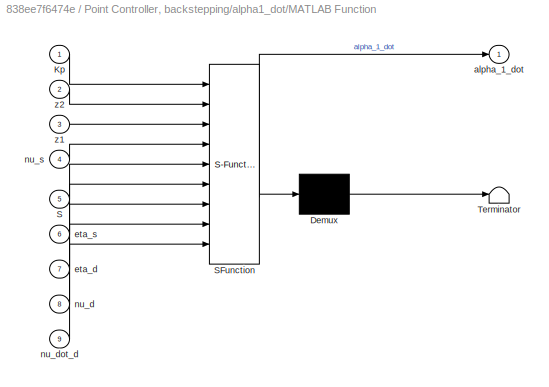
BLOCK [SubSystem] Point Controller,  backstepping/alpha1_dot/MATLAB Function
  ErrorFcn = Stateflow.Translate.translate
  FunctionWithSeparateData = off
  MaskHideContents = off
  MinAlgLoopOccurrences = off
  Opaque = off
  PermitHierarchicalResolution = ExplicitOnly
  Ports = [9, 1]
  PropExecContextOutsideSubsystem = off
  RTWSystemCode = Auto
  RequestExecContextInheritance = off
  SFBlockType = MATLAB Function
  TreatAsAtomicUnit = on
BLOCK [Demux] Point Controller,  backstepping/alpha1_dot/MATLAB Function/ Demux 
  Outputs = 1
  Ports = [1, 1]
BLOCK [S-Function] Point Controller,  backstepping/alpha1_dot/MATLAB Function/ SFunction 
  EnableBusSupport = on
  FunctionName = sf_sfun
  PortCounts = [9 2]
  Ports = [9, 2]
  Tag = Stateflow S-Function HIL_model_experiments2 7
BLOCK [Terminator] Point Controller,  backstepping/alpha1_dot/MATLAB Function/ Terminator 
BLOCK [Inport] Point Controller,  backstepping/alpha1_dot/MATLAB Function/Kp
  IconDisplay = Port number
BLOCK [Inport] Point Controller,  backstepping/alpha1_dot/MATLAB Function/S
  IconDisplay = Port number
  Port = 5
BLOCK [Outport] Point Controller,  backstepping/alpha1_dot/MATLAB Function/alpha_1_dot
  IconDisplay = Port number
BLOCK [Inport] Point Controller,  backstepping/alpha1_dot/MATLAB Function/eta_d
  IconDisplay = Port number
  Port = 7
BLOCK [Inport] Point Controller,  backstepping/alpha1_dot/MATLAB Function/eta_s
  IconDisplay = Port number
  Port = 6
BLOCK [Inport] Point Controller,  backstepping/alpha1_dot/MATLAB Function/nu_d
  IconDisplay = Port number
  Port = 8
BLOCK [Inport] Point Controller,  backstepping/alpha1_dot/MATLAB Function/nu_dot_d
  IconDisplay = Port number
  Port = 9
BLOCK [Inport] Point Controller,  backstepping/alpha1_dot/MATLAB Function/nu_s
  IconDisplay = Port number
  Port = 4
BLOCK [Inport] Point Controller,  backstepping/alpha1_dot/MATLAB Function/z1
  IconDisplay = Port number
  Port = 3
BLOCK [Inport] Point Controller,  backstepping/alpha1_dot/MATLAB Function/z2
  IconDisplay = Port number
  Port = 2
BLOCK [Outport] Point Controller,  backstepping/alpha1_dot/alpha_1_dot
  IconDisplay = Port number
  Port = 5
BLOCK [Outport] Point Controller,  backstepping/alpha1_dot/eta s
  IconDisplay = Port number
  Port = 4
BLOCK [Inport] Point Controller,  backstepping/alpha1_dot/eta_d
  IconDisplay = Port number
  Port = 5
BLOCK [Inport] Point Controller,  backstepping/alpha1_dot/eta_s
  IconDisplay = Port number
  Port = 4
BLOCK [Outport] Point Controller,  backstepping/alpha1_dot/nu s
  IconDisplay = Port number
  Port = 3
BLOCK [Inport] Point Controller,  backstepping/alpha1_dot/nu_d
  IconDisplay = Port number
  Port = 3
BLOCK [Inport] Point Controller,  backstepping/alpha1_dot/nu_dot_d
  IconDisplay = Port number
  Port = 7
BLOCK [Inport] Point Controller,  backstepping/alpha1_dot/nu_s
  IconDisplay = Port number
  Port = 6
BLOCK [Outport] Point Controller,  backstepping/alpha1_dot/z 1
  IconDisplay = Port number
BLOCK [Outport] Point Controller,  backstepping/alpha1_dot/z 2
  IconDisplay = Port number
  Port = 2
BLOCK [Inport] Point Controller,  backstepping/alpha1_dot/z1
  IconDisplay = Port number
  Port = 2
BLOCK [Inport] Point Controller,  backstepping/alpha1_dot/z2
  IconDisplay = Port number
BLOCK [SubSystem] Point Controller,  backstepping/alpha_1
  FunctionWithSeparateData = off
  MaskHideContents = off
  MinAlgLoopOccurrences = off
  Opaque = off
  Ports = [4, 5]
  PropExecContextOutsideSubsystem = off
  RTWSystemCode = Auto
  RequestExecContextInheritance = off
BLOCK [Constant] Point Controller,  backstepping/alpha_1/Constant
  Value = Kp
  VectorParams1D = off
BLOCK [SubSystem] Point Controller,  backstepping/alpha_1/MATLAB Function
  ErrorFcn = Stateflow.Translate.translate
  FunctionWithSeparateData = off
  MaskHideContents = off
  MinAlgLoopOccurrences = off
  Opaque = off
  PermitHierarchicalResolution = ExplicitOnly
  Ports = [5, 1]
  PropExecContextOutsideSubsystem = off
  RTWSystemCode = Auto
  RequestExecContextInheritance = off
  SFBlockType = MATLAB Function
  TreatAsAtomicUnit = on
BLOCK [Demux] Point Controller,  backstepping/alpha_1/MATLAB Function/ Demux 
  Outputs = 1
  Ports = [1, 1]
BLOCK [S-Function] Point Controller,  backstepping/alpha_1/MATLAB Function/ SFunction 
  EnableBusSupport = on
  FunctionName = sf_sfun
  PortCounts = [5 2]
  Ports = [5, 2]
  Tag = Stateflow S-Function HIL_model_experiments2 9
BLOCK [Terminator] Point Controller,  backstepping/alpha_1/MATLAB Function/ Terminator 
BLOCK [Inport] Point Controller,  backstepping/alpha_1/MATLAB Function/Kp
  IconDisplay = Port number
BLOCK [Outport] Point Controller,  backstepping/alpha_1/MATLAB Function/alpha_1
  IconDisplay = Port number
BLOCK [Inport] Point Controller,  backstepping/alpha_1/MATLAB Function/eta_d
  IconDisplay = Port number
  Port = 5
BLOCK [Inport] Point Controller,  backstepping/alpha_1/MATLAB Function/eta_s
  IconDisplay = Port number
  Port = 4
BLOCK [Inport] Point Controller,  backstepping/alpha_1/MATLAB Function/nu_d
  IconDisplay = Port number
  Port = 3
BLOCK [Inport] Point Controller,  backstepping/alpha_1/MATLAB Function/z1
  IconDisplay = Port number
  Port = 2
BLOCK [Outport] Point Controller,  backstepping/alpha_1/alpha_1
  IconDisplay = Port number
BLOCK [Outport] Point Controller,  backstepping/alpha_1/eta d
  IconDisplay = Port number
  Port = 5
BLOCK [Outport] Point Controller,  backstepping/alpha_1/eta s
  IconDisplay = Port number
  Port = 4
BLOCK [Inport] Point Controller,  backstepping/alpha_1/eta_d
  IconDisplay = Port number
  Port = 3
BLOCK [Inport] Point Controller,  backstepping/alpha_1/eta_s
  IconDisplay = Port number
  Port = 2
BLOCK [Outport] Point Controller,  backstepping/alpha_1/nu d
  IconDisplay = Port number
  Port = 3
BLOCK [Inport] Point Controller,  backstepping/alpha_1/nu_d
  IconDisplay = Port number
  Port = 4
BLOCK [Outport] Point Controller,  backstepping/alpha_1/z 1
  IconDisplay = Port number
  Port = 2
BLOCK [Inport] Point Controller,  backstepping/alpha_1/z1
  IconDisplay = Port number
BLOCK [Inport] Point Controller,  backstepping/b_s
  IconDisplay = Port number
  Port = 6
BLOCK [Inport] Point Controller,  backstepping/eta_d
  IconDisplay = Port number
BLOCK [Inport] Point Controller,  backstepping/eta_s
  IconDisplay = Port number
  Port = 4
BLOCK [Inport] Point Controller,  backstepping/nu_d
  IconDisplay = Port number
  Port = 2
BLOCK [Inport] Point Controller,  backstepping/nu_dot_d
  IconDisplay = Port number
  Port = 3
BLOCK [Inport] Point Controller,  backstepping/nu_s
  IconDisplay = Port number
  Port = 5
BLOCK [Outport] Point Controller,  backstepping/tau
  IconDisplay = Port number
BLOCK [SubSystem] Point Controller,  backstepping/z1
  FunctionWithSeparateData = off
  MaskHideContents = off
  MinAlgLoopOccurrences = off
  Opaque = off
  Ports = [2, 3]
  PropExecContextOutsideSubsystem = off
  RTWSystemCode = Auto
  RequestExecContextInheritance = off
BLOCK [Product] Point Controller,  backstepping/z1/Product
  InputSameDT = off
  Multiplication = Matrix(*)
  OutDataTypeStr = Inherit: Inherit via internal rule
  Ports = [2, 1]
  RndMeth = Floor
  SaturateOnIntegerOverflow = off
BLOCK [Reference] Point Controller,  backstepping/z1/R(psi) transposed  REF=dspmtrx3/Transpose
  Hermitian = off
  Ports = [1, 1]
  SourceBlock = dspmtrx3/Transpose
  SourceType = Transpose
  overflowFlag = off
BLOCK [SubSystem] Point Controller,  backstepping/z1/R(psi)1
  ErrorFcn = Stateflow.Translate.translate
  FunctionWithSeparateData = off
  MaskHideContents = off
  MinAlgLoopOccurrences = off
  Opaque = off
  PermitHierarchicalResolution = ExplicitOnly
  Ports = [1, 1]
  PropExecContextOutsideSubsystem = off
  RTWSystemCode = Auto
  RequestExecContextInheritance = off
  SFBlockType = MATLAB Function
  TreatAsAtomicUnit = on
BLOCK [Demux] Point Controller,  backstepping/z1/R(psi)1/ Demux 
  Outputs = 1
  Ports = [1, 1]
BLOCK [S-Function] Point Controller,  backstepping/z1/R(psi)1/ SFunction 
  EnableBusSupport = on
  FunctionName = sf_sfun
  PortCounts = [1 2]
  Ports = [1, 2]
  Tag = Stateflow S-Function HIL_model_experiments2 10
BLOCK [Terminator] Point Controller,  backstepping/z1/R(psi)1/ Terminator 
BLOCK [Outport] Point Controller,  backstepping/z1/R(psi)1/R
  IconDisplay = Port number
BLOCK [Inport] Point Controller,  backstepping/z1/R(psi)1/eta
  IconDisplay = Port number
BLOCK [Scope] Point Controller,  backstepping/z1/Scope1
  DataFormat = StructureWithTime
  Floating = off
  LimitDataPoints = off
  NumInputPorts = 2
  Ports = [2]
  SampleTime = 0
  SaveName = ScopeData20
  ShowLegends = off
  YMax = 5~5
  YMin = -5~-5
BLOCK [Sum] Point Controller,  backstepping/z1/Sum
  IconShape = round
  InputSameDT = off
  Inputs = |+-
  OutDataTypeStr = Inherit: Inherit via internal rule
  Ports = [2, 1]
  SaturateOnIntegerOverflow = off
BLOCK [Outport] Point Controller,  backstepping/z1/eta des
  IconDisplay = Port number
  Port = 3
BLOCK [Inport] Point Controller,  backstepping/z1/eta_d
  IconDisplay = Port number
BLOCK [Outport] Point Controller,  backstepping/z1/eta_s
  IconDisplay = Port number
  Port = 2
BLOCK [Inport] Point Controller,  backstepping/z1/eta_ship
  IconDisplay = Port number
  Port = 2
BLOCK [Outport] Point Controller,  backstepping/z1/z1
  IconDisplay = Port number
BLOCK [SubSystem] Point Controller,  backstepping/z2
  FunctionWithSeparateData = off
  MaskHideContents = off
  MinAlgLoopOccurrences = off
  Opaque = off
  Ports = [6, 5]
  PropExecContextOutsideSubsystem = off
  RTWSystemCode = Auto
  RequestExecContextInheritance = off
BLOCK [SubSystem] Point Controller,  backstepping/z2/MATLAB Function
  ErrorFcn = Stateflow.Translate.translate
  FunctionWithSeparateData = off
  MaskHideContents = off
  MinAlgLoopOccurrences = off
  Opaque = off
  PermitHierarchicalResolution = ExplicitOnly
  Ports = [2, 1]
  PropExecContextOutsideSubsystem = off
  RTWSystemCode = Auto
  RequestExecContextInheritance = off
  SFBlockType = MATLAB Function
  TreatAsAtomicUnit = on
BLOCK [Demux] Point Controller,  backstepping/z2/MATLAB Function/ Demux 
  Outputs = 1
  Ports = [1, 1]
BLOCK [S-Function] Point Controller,  backstepping/z2/MATLAB Function/ SFunction 
  EnableBusSupport = on
  FunctionName = sf_sfun
  PortCounts = [2 2]
  Ports = [2, 2]
  Tag = Stateflow S-Function HIL_model_experiments2 11
BLOCK [Terminator] Point Controller,  backstepping/z2/MATLAB Function/ Terminator 
BLOCK [Inport] Point Controller,  backstepping/z2/MATLAB Function/alpha1
  IconDisplay = Port number
  Port = 2
BLOCK [Inport] Point Controller,  backstepping/z2/MATLAB Function/nu_ship
  IconDisplay = Port number
BLOCK [Outport] Point Controller,  backstepping/z2/MATLAB Function/z2
  IconDisplay = Port number
BLOCK [Inport] Point Controller,  backstepping/z2/alpha_1
  IconDisplay = Port number
BLOCK [Outport] Point Controller,  backstepping/z2/eta d
  IconDisplay = Port number
  Port = 5
BLOCK [Outport] Point Controller,  backstepping/z2/eta s
  IconDisplay = Port number
  Port = 4
BLOCK [Inport] Point Controller,  backstepping/z2/eta_d
  IconDisplay = Port number
  Port = 5
BLOCK [Inport] Point Controller,  backstepping/z2/eta_s
  IconDisplay = Port number
  Port = 4
BLOCK [Outport] Point Controller,  backstepping/z2/nu d
  IconDisplay = Port number
  Port = 3
BLOCK [Inport] Point Controller,  backstepping/z2/nu_d
  IconDisplay = Port number
  Port = 3
BLOCK [Inport] Point Controller,  backstepping/z2/nu_ship
  IconDisplay = Port number
  Port = 6
BLOCK [Outport] Point Controller,  backstepping/z2/z 1
  IconDisplay = Port number
  Port = 2
BLOCK [Inport] Point Controller,  backstepping/z2/z1
  IconDisplay = Port number
  Port = 2
BLOCK [Outport] Point Controller,  backstepping/z2/z2
  IconDisplay = Port number
BLOCK [SubSystem] Position and attitude reference model
  FunctionWithSeparateData = off
  MaskHideContents = off
  MinAlgLoopOccurrences = off
  Opaque = off
  Ports = [4, 3]
  PropExecContextOutsideSubsystem = off
  RTWSystemCode = Auto
  RequestExecContextInheritance = off
BLOCK [Constant] Position and attitude reference model/Constant
  Value = [u_surge_max; u_sway_max; u_yaw_max]
  VectorParams1D = off
BLOCK [Demux] Position and attitude reference model/Demux
  DisplayOption = bar
  Outputs = 3
  Ports = [1, 3]
BLOCK [Gain] Position and attitude reference model/Gain
  Gain = C_ref
  Multiplication = Matrix(K*u)
  OutDataTypeStr = Inherit: Inherit via internal rule
  ParamDataTypeStr = Inherit: Inherit via internal rule
  SaturateOnIntegerOverflow = off
BLOCK [Gain] Position and attitude reference model/Gain1
  Gain = B_ref
  Multiplication = Matrix(K*u)
  OutDataTypeStr = Inherit: Inherit via internal rule
  ParamDataTypeStr = Inherit: Inherit via internal rule
  SaturateOnIntegerOverflow = off
BLOCK [Gain] Position and attitude reference model/Gain2
  Gain = A_ref
  Multiplication = Matrix(K*u)
  OutDataTypeStr = Inherit: Inherit via internal rule
  ParamDataTypeStr = Inherit: Inherit via internal rule
  SaturateOnIntegerOverflow = off
BLOCK [Integrator] Position and attitude reference model/Integrator
  InitialCondition = Pship
  Ports = [1, 1]
BLOCK [Integrator] Position and attitude reference model/Integrator1
  InitialCondition = [0;0;0]
  Ports = [1, 1]
BLOCK [Integrator] Position and attitude reference model/Integrator2
  InitialCondition = [0;0;0]
  Ports = [1, 1]
BLOCK [SubSystem] Position and attitude reference model/MATLAB Function
  ErrorFcn = Stateflow.Translate.translate
  FunctionWithSeparateData = off
  MaskHideContents = off
  MinAlgLoopOccurrences = off
  Opaque = off
  PermitHierarchicalResolution = ExplicitOnly
  Ports = [2, 1]
  PropExecContextOutsideSubsystem = off
  RTWSystemCode = Auto
  RequestExecContextInheritance = off
  SFBlockType = MATLAB Function
  TreatAsAtomicUnit = on
BLOCK [Demux] Position and attitude reference model/MATLAB Function/ Demux 
  Outputs = 1
  Ports = [1, 1]
BLOCK [S-Function] Position and attitude reference model/MATLAB Function/ SFunction 
  EnableBusSupport = on
  FunctionName = sf_sfun
  PortCounts = [2 2]
  Ports = [2, 2]
  Tag = Stateflow S-Function HIL_model_experiments2 26
BLOCK [Terminator] Position and attitude reference model/MATLAB Function/ Terminator 
BLOCK [Outport] Position and attitude reference model/MATLAB Function/eta_dot_ref
  IconDisplay = Port number
BLOCK [Inport] Position and attitude reference model/MATLAB Function/eta_ref
  IconDisplay = Port number
BLOCK [Inport] Position and attitude reference model/MATLAB Function/nu_ref
  IconDisplay = Port number
  Port = 2
BLOCK [SubSystem] Position and attitude reference model/Saturation velocity
  ErrorFcn = Stateflow.Translate.translate
  FunctionWithSeparateData = off
  MaskHideContents = off
  MinAlgLoopOccurrences = off
  Opaque = off
  PermitHierarchicalResolution = ExplicitOnly
  Ports = [3, 1]
  PropExecContextOutsideSubsystem = off
  RTWSystemCode = Auto
  RequestExecContextInheritance = off
  SFBlockType = MATLAB Function
  TreatAsAtomicUnit = on
BLOCK [Demux] Position and attitude reference model/Saturation velocity/ Demux 
  Outputs = 1
  Ports = [1, 1]
BLOCK [S-Function] Position and attitude reference model/Saturation velocity/ SFunction 
  EnableBusSupport = on
  FunctionName = sf_sfun
  PortCounts = [3 2]
  Ports = [3, 2]
  Tag = Stateflow S-Function HIL_model_experiments2 12
BLOCK [Terminator] Position and attitude reference model/Saturation velocity/ Terminator 
BLOCK [Inport] Position and attitude reference model/Saturation velocity/eta_ship
  IconDisplay = Port number
  Port = 3
BLOCK [Inport] Position and attitude reference model/Saturation velocity/in
  IconDisplay = Port number
BLOCK [Inport] Position and attitude reference model/Saturation velocity/velMax
  IconDisplay = Port number
  Port = 2
BLOCK [Outport] Position and attitude reference model/Saturation velocity/y
  IconDisplay = Port number
BLOCK [Sum] Position and attitude reference model/Sum
  InputSameDT = off
  Inputs = ++-
  OutDataTypeStr = Inherit: Inherit via internal rule
  Ports = [3, 1]
  SaturateOnIntegerOverflow = off
BLOCK [Sum] Position and attitude reference model/Sum1
  IconShape = round
  InputSameDT = off
  Inputs = -+|
  OutDataTypeStr = Inherit: Inherit via internal rule
  Ports = [2, 1]
  SaturateOnIntegerOverflow = off
BLOCK [Sum] Position and attitude reference model/Sum2
  IconShape = round
  InputSameDT = off
  Inputs = -+|
  OutDataTypeStr = Inherit: Inherit via internal rule
  Ports = [2, 1]
  SaturateOnIntegerOverflow = off
BLOCK [Outport] Position and attitude reference model/eta_d ship
  IconDisplay = Port number
BLOCK [Inport] Position and attitude reference model/eta_ref ship
  IconDisplay = Port number
BLOCK [Inport] Position and attitude reference model/eta_ship
  IconDisplay = Port number
  Port = 3
BLOCK [Outport] Position and attitude reference model/nu_d ship
  IconDisplay = Port number
  Port = 2
BLOCK [Outport] Position and attitude reference model/nu_d_dot ship
  IconDisplay = Port number
  Port = 3
BLOCK [Inport] Position and attitude reference model/nu_ref ship
  IconDisplay = Port number
  Port = 2
BLOCK [Inport] Position and attitude reference model/nu_ship
  IconDisplay = Port number
  Port = 4
BLOCK [ToWorkspace] Position and attitude reference model/ship xDes
  MaxDataPoints = inf
  Ports = [1]
  SampleTime = -1
  SaveFormat = Timeseries
  VariableName = s_xDes
BLOCK [ToWorkspace] Position and attitude reference model/ship yDes
  MaxDataPoints = inf
  Ports = [1]
  SampleTime = -1
  SaveFormat = Timeseries
  VariableName = s_yDes
BLOCK [ToWorkspace] Position and attitude reference model/ship yDes1
  MaxDataPoints = inf
  Ports = [1]
  SampleTime = -1
  SaveFormat = Timeseries
  VariableName = s_psiDes
BLOCK [SubSystem] Position and attitude reference model/transformation matrix
  ErrorFcn = Stateflow.Translate.translate
  FunctionWithSeparateData = off
  MaskHideContents = off
  MinAlgLoopOccurrences = off
  Opaque = off
  PermitHierarchicalResolution = ExplicitOnly
  Ports = [4, 2]
  PropExecContextOutsideSubsystem = off
  RTWSystemCode = Auto
  RequestExecContextInheritance = off
  SFBlockType = MATLAB Function
  TreatAsAtomicUnit = on
BLOCK [Demux] Position and attitude reference model/transformation matrix/ Demux 
  Outputs = 1
  Ports = [1, 1]
BLOCK [S-Function] Position and attitude reference model/transformation matrix/ SFunction 
  EnableBusSupport = on
  FunctionName = sf_sfun
  PortCounts = [4 3]
  Ports = [4, 3]
  Tag = Stateflow S-Function HIL_model_experiments2 13
BLOCK [Terminator] Position and attitude reference model/transformation matrix/ Terminator 
BLOCK [Inport] Position and attitude reference model/transformation matrix/eta_d_dot
  IconDisplay = Port number
BLOCK [Inport] Position and attitude reference model/transformation matrix/eta_d_dotdot
  IconDisplay = Port number
  Port = 2
BLOCK [Inport] Position and attitude reference model/transformation matrix/eta_ship
  IconDisplay = Port number
  Port = 3
BLOCK [Outport] Position and attitude reference model/transformation matrix/nu_d
  IconDisplay = Port number
BLOCK [Outport] Position and attitude reference model/transformation matrix/nu_dot_d
  IconDisplay = Port number
  Port = 2
BLOCK [Inport] Position and attitude reference model/transformation matrix/nu_ship
  IconDisplay = Port number
  Port = 4
BLOCK [Scope] Scope
  DataFormat = StructureWithTime
  Floating = off
  NumInputPorts = 2
  Ports = [2]
  SampleTime = 0
  SaveName = ScopeData5
  ShowLegends = off
  YMax = 5~5
  YMin = -5~-5
BLOCK [Scope] Scope1
  DataFormat = StructureWithTime
  Floating = off
  NumInputPorts = 3
  Ports = [3]
  SampleTime = 0
  SaveName = ScopeData6
  ShowLegends = off
  YMax = 5~5~5
  YMin = -5~-5~-5
BLOCK [Scope] Scope2
  DataFormat = StructureWithTime
  Floating = off
  NumInputPorts = 1
  Ports = [1]
  SampleTime = 0
  SaveName = ScopeData7
  ShowLegends = off
BLOCK [ToWorkspace] To Workspace
  MaxDataPoints = inf
  Ports = [1]
  SampleTime = -1
  SaveFormat = Timeseries
  VariableName = delta_pen
BLOCK [ToWorkspace] To Workspace1
  MaxDataPoints = inf
  Ports = [1]
  SampleTime = -1
  SaveFormat = Timeseries
  VariableName = tauSystem
BLOCK [SubSystem] delta index
  FunctionWithSeparateData = off
  MaskHideContents = off
  MinAlgLoopOccurrences = off
  Opaque = off
  Ports = [1, 3]
  PropExecContextOutsideSubsystem = off
  RTWSystemCode = Auto
  RequestExecContextInheritance = off
BLOCK [Gain] delta index/Gain
  Gain = kappa
  OutDataTypeStr = Inherit: Inherit via internal rule
  ParamDataTypeStr = Inherit: Inherit via internal rule
  SaturateOnIntegerOverflow = off
BLOCK [SubSystem] delta index/Mean
  ErrorFcn = Stateflow.Translate.translate
  FunctionWithSeparateData = off
  MaskHideContents = off
  MinAlgLoopOccurrences = off
  Opaque = off
  PermitHierarchicalResolution = ExplicitOnly
  Ports = [4, 4]
  PropExecContextOutsideSubsystem = off
  RTWSystemCode = Auto
  RequestExecContextInheritance = off
  SFBlockType = MATLAB Function
  TreatAsAtomicUnit = on
BLOCK [Demux] delta index/Mean/ Demux 
  Outputs = 1
  Ports = [1, 1]
BLOCK [S-Function] delta index/Mean/ SFunction 
  EnableBusSupport = on
  FunctionName = sf_sfun
  PortCounts = [4 5]
  Ports = [4, 5]
  Tag = Stateflow S-Function HIL_model_experiments2 3
BLOCK [Terminator] delta index/Mean/ Terminator 
BLOCK [Outport] delta index/Mean/Mean
  IconDisplay = Port number
  Port = 2
BLOCK [Inport] delta index/Mean/N
  IconDisplay = Port number
  Port = 2
BLOCK [Outport] delta index/Mean/StandardDev
  IconDisplay = Port number
  Port = 3
BLOCK [Outport] delta index/Mean/counter
  IconDisplay = Port number
BLOCK [Inport] delta index/Mean/input
  IconDisplay = Port number
  Port = 3
BLOCK [Inport] delta index/Mean/saved_in
  IconDisplay = Port number
  Port = 4
BLOCK [Outport] delta index/Mean/saved_out
  IconDisplay = Port number
  Port = 4
BLOCK [Inport] delta index/Mean/theCount
  IconDisplay = Port number
BLOCK [Memory] delta index/Memory
  X0 = saved_init
BLOCK [Memory] delta index/Memory1
  X0 = 1
BLOCK [Mux] delta index/Mux
  DisplayOption = bar
  Inputs = 3
  Ports = [3, 1]
BLOCK [Constant] delta index/N instances for calc
  Value = Ninstances
BLOCK [Inport] delta index/Tensions
  IconDisplay = Port number
BLOCK [ToWorkspace] delta index/To Workspace
  MaxDataPoints = inf
  Ports = [1]
  SampleTime = -1
  SaveFormat = Timeseries
  VariableName = meanT
BLOCK [ToWorkspace] delta index/To Workspace1
  MaxDataPoints = inf
  Ports = [1]
  SampleTime = -1
  SaveFormat = Timeseries
  VariableName = stanDevT
BLOCK [Scope] delta index/count
  DataFormat = StructureWithTime
  Floating = off
  NumInputPorts = 1
  Ports = [1]
  SampleTime = 0
  SaveName = ScopeData1
  ShowLegends = off
BLOCK [SubSystem] delta index/delta_indexes
  FunctionWithSeparateData = off
  MaskHideContents = off
  MinAlgLoopOccurrences = off
  Opaque = off
  Ports = [2, 3]
  PropExecContextOutsideSubsystem = off
  RTWSystemCode = Auto
  RequestExecContextInheritance = off
BLOCK [Product] delta index/delta_indexes/Product
  InputSameDT = off
  Inputs = */
  OutDataTypeStr = Inherit: Inherit via internal rule
  Ports = [2, 1]
  RndMeth = Floor
  SaturateOnIntegerOverflow = off
BLOCK [Product] delta index/delta_indexes/Product1
  InputSameDT = off
  Inputs = */
  OutDataTypeStr = Inherit: Inherit via internal rule
  Ports = [2, 1]
  RndMeth = Floor
  SaturateOnIntegerOverflow = off
BLOCK [Product] delta index/delta_indexes/Product2
  InputSameDT = off
  Inputs = */
  OutDataTypeStr = Inherit: Inherit via internal rule
  Ports = [2, 1]
  RndMeth = Floor
  SaturateOnIntegerOverflow = off
BLOCK [Scope] delta index/delta_indexes/Scope
  DataFormat = StructureWithTime
  Floating = off
  NumInputPorts = 1
  Ports = [1]
  SampleTime = 0
  ShowLegends = off
  ZoomMode = yonly
BLOCK [Scope] delta index/delta_indexes/Scope1
  DataFormat = StructureWithTime
  Floating = off
  NumInputPorts = 1
  Ports = [1]
  SampleTime = 0
  SaveName = ScopeData3
  ShowLegends = off
  ZoomMode = yonly
BLOCK [Scope] delta index/delta_indexes/Scope2
  DataFormat = StructureWithTime
  Floating = off
  NumInputPorts = 1
  Ports = [1]
  SampleTime = 0
  SaveName = ScopeData4
  ShowLegends = off
  ZoomMode = yonly
BLOCK [Sum] delta index/delta_indexes/Sum
  InputSameDT = off
  Inputs = +--
  OutDataTypeStr = Inherit: Inherit via internal rule
  Ports = [3, 1]
  SaturateOnIntegerOverflow = off
BLOCK [Sum] delta index/delta_indexes/Sum1
  InputSameDT = off
  Inputs = +--
  OutDataTypeStr = Inherit: Inherit via internal rule
  Ports = [3, 1]
  SaturateOnIntegerOverflow = off
BLOCK [Sum] delta index/delta_indexes/Sum2
  InputSameDT = off
  Inputs = +--
  OutDataTypeStr = Inherit: Inherit via internal rule
  Ports = [3, 1]
  SaturateOnIntegerOverflow = off
BLOCK [Constant] delta index/delta_indexes/T_b,T
  Value = T_break
BLOCK [Constant] delta index/delta_indexes/T_b,T1
  Value = T_slip
BLOCK [Constant] delta index/delta_indexes/T_b,T2
  Value = T_overturn
BLOCK [ToWorkspace] delta index/delta_indexes/To Workspace1
  MaxDataPoints = inf
  Ports = [1]
  SampleTime = -1
  SaveFormat = Timeseries
  VariableName = deltaSlippage
BLOCK [ToWorkspace] delta index/delta_indexes/To Workspace2
  MaxDataPoints = inf
  Ports = [1]
  SampleTime = -1
  SaveFormat = Timeseries
  VariableName = deltaRupture
BLOCK [ToWorkspace] delta index/delta_indexes/To Workspace3
  MaxDataPoints = inf
  Ports = [1]
  SampleTime = -1
  SaveFormat = Timeseries
  VariableName = deltaOverturn
BLOCK [Outport] delta index/delta_indexes/delta_overturn
  IconDisplay = Port number
  Port = 3
BLOCK [Outport] delta index/delta_indexes/delta_rupt
  IconDisplay = Port number
BLOCK [Outport] delta index/delta_indexes/delta_slip
  IconDisplay = Port number
  Port = 2
BLOCK [Inport] delta index/delta_indexes/kappa_sd
  IconDisplay = Port number
  Port = 2
BLOCK [Inport] delta index/delta_indexes/mean
  IconDisplay = Port number
BLOCK [Constant] delta index/delta_indexes/sigma_b,T
  Value = sd_break
BLOCK [Constant] delta index/delta_indexes/sigma_b,T1
  Value = sd_slip
BLOCK [Constant] delta index/delta_indexes/sigma_b,T2
  Value = sd_overturn
BLOCK [Outport] delta index/delta_overturn
  IconDisplay = Port number
  Port = 3
BLOCK [Outport] delta index/delta_rupture
  IconDisplay = Port number
BLOCK [Outport] delta index/delta_slippage
  IconDisplay = Port number
  Port = 2
BLOCK [Scope] delta index/mean,sd,T
  DataFormat = StructureWithTime
  Floating = off
  NumInputPorts = 1
  Ports = [1]
  SampleTime = 0
  SaveName = ScopeData2
  ShowLegends = off
  ZoomMode = xonly
BLOCK [SubSystem] delta_T penalty
  FunctionWithSeparateData = off
  MaskHideContents = off
  MinAlgLoopOccurrences = off
  Opaque = off
  Ports = [4, 2]
  PropExecContextOutsideSubsystem = off
  RTWSystemCode = Auto
  RequestExecContextInheritance = off
BLOCK [Constant] delta_T penalty/Constant
BLOCK [Constant] delta_T penalty/Constant2
  Value = 0
BLOCK [SubSystem] delta_T penalty/MATLAB Function
  ErrorFcn = Stateflow.Translate.translate
  FunctionWithSeparateData = off
  MaskHideContents = off
  MinAlgLoopOccurrences = off
  Opaque = off
  PermitHierarchicalResolution = ExplicitOnly
  Ports = [3, 1]
  PropExecContextOutsideSubsystem = off
  RTWSystemCode = Auto
  RequestExecContextInheritance = off
  SFBlockType = MATLAB Function
  TreatAsAtomicUnit = on
BLOCK [Demux] delta_T penalty/MATLAB Function/ Demux 
  Outputs = 1
  Ports = [1, 1]
BLOCK [S-Function] delta_T penalty/MATLAB Function/ SFunction 
  EnableBusSupport = on
  FunctionName = sf_sfun
  PortCounts = [3 2]
  Ports = [3, 2]
  Tag = Stateflow S-Function HIL_model_experiments2 6
BLOCK [Terminator] delta_T penalty/MATLAB Function/ Terminator 
BLOCK [Inport] delta_T penalty/MATLAB Function/deltaT
  IconDisplay = Port number
BLOCK [Inport] delta_T penalty/MATLAB Function/delta_care
  IconDisplay = Port number
  Port = 3
BLOCK [Inport] delta_T penalty/MATLAB Function/delta_lim
  IconDisplay = Port number
  Port = 2
BLOCK [Outport] delta_T penalty/MATLAB Function/out
  IconDisplay = Port number
BLOCK [MinMax] delta_T penalty/MinMax
  InputSameDT = off
  Inputs = 2
  Ports = [2, 1]
  SaturateOnIntegerOverflow = off
BLOCK [MinMax] delta_T penalty/MinMax1
  Function = max
  InputSameDT = off
  Inputs = 2
  Ports = [2, 1]
  SaturateOnIntegerOverflow = off
BLOCK [Product] delta_T penalty/Product1
  InputSameDT = off
  OutDataTypeStr = Inherit: Inherit via internal rule
  Ports = [2, 1]
  RndMeth = Floor
  SaturateOnIntegerOverflow = off
BLOCK [Sum] delta_T penalty/Sum
  IconShape = round
  InputSameDT = off
  Inputs = |+-
  OutDataTypeStr = Inherit: Inherit via internal rule
  Ports = [2, 1]
  SaturateOnIntegerOverflow = off
BLOCK [Inport] delta_T penalty/delta_T
  IconDisplay = Port number
  Port = 2
BLOCK [Inport] delta_T penalty/delta_care
  IconDisplay = Port number
  Port = 4
BLOCK [Inport] delta_T penalty/delta_lim
  IconDisplay = Port number
  Port = 3
BLOCK [Gain] delta_T penalty/delta_penalty
  OutDataTypeStr = Inherit: Inherit via internal rule
  ParamDataTypeStr = Inherit: Inherit via internal rule
  SaturateOnIntegerOverflow = off
BLOCK [Outport] delta_T penalty/delta_penalty out
  IconDisplay = Port number
  Port = 2
BLOCK [Outport] delta_T penalty/tau
  IconDisplay = Port number
BLOCK [Inport] delta_T penalty/tau in
  IconDisplay = Port number
BLOCK [Constant] etaRef
  Value = etaRef
  VectorParams1D = off
LINE Clock:1 -> MATLAB Function:2
LINE Constant1:1 -> Point Controller,  backstepping:6
LINE Constant3:1 -> MATLAB Function:1
LINE Constant4:1 -> delta_T penalty:4
LINE Constant5:1 -> delta_T penalty:3
LINE Constant:1 -> HIL Model - CS Enterprise I->towline->iceberg:2
LINE Demux1:1 -> Scope1:1
LINE Demux1:2 -> Scope1:2
LINE Demux1:3 -> Scope1:3
LINE Demux:1 -> Scope:1
LINE Demux:2 -> Scope:2
LINE Failure modes/Clock:1 -> Failure modes/MATLAB Function:4
LINE Failure modes/MATLAB Function:1 -> Failure modes/Memory:1
NET Failure modes/Memory:1 -> Failure modes/MATLAB Function:3, Failure modes/To Workspace:1, Failure modes/disconnect tow:1
LINE Failure modes/delta Indexes:1 -> Failure modes/MATLAB Function:1
LINE Failure modes/limits:1 -> Failure modes/MATLAB Function:2
NET Failure modes:1 -> HIL Model - CS Enterprise I->towline->iceberg:3, Scope2:1
LINE HIL Model - CS Enterprise I->towline->iceberg/Demux:1 -> HIL Model - CS Enterprise I->towline->iceberg/Tension estimator:1
LINE HIL Model - CS Enterprise I->towline->iceberg/Demux:2 -> HIL Model - CS Enterprise I->towline->iceberg/Tension estimator:2
LINE HIL Model - CS Enterprise I->towline->iceberg/Measurement Error percentage:1 -> HIL Model - CS Enterprise I->towline->iceberg/Ship - Iceberg - Current Model:4
LINE HIL Model - CS Enterprise I->towline->iceberg/Mux:1 -> HIL Model - CS Enterprise I->towline->iceberg/Demux:1
LINE HIL Model - CS Enterprise I->towline->iceberg/Ship - Iceberg - Current Model/Current model/Constant1:1 -> HIL Model - CS Enterprise I->towline->iceberg/Ship - Iceberg - Current Model/Current model/Vector Concatenate:2
LINE HIL Model - CS Enterprise I->towline->iceberg/Ship - Iceberg - Current Model/Current model/Constant:1 -> HIL Model - CS Enterprise I->towline->iceberg/Ship - Iceberg - Current Model/Current model/Vc_dot:1
LINE HIL Model - CS Enterprise I->towline->iceberg/Ship - Iceberg - Current Model/Current model/Demux:1 -> HIL Model - CS Enterprise I->towline->iceberg/Ship - Iceberg - Current Model/Current model/Terminator:1
LINE HIL Model - CS Enterprise I->towline->iceberg/Ship - Iceberg - Current Model/Current model/Demux:2 -> HIL Model - CS Enterprise I->towline->iceberg/Ship - Iceberg - Current Model/Current model/Terminator1:1
LINE HIL Model - CS Enterprise I->towline->iceberg/Ship - Iceberg - Current Model/Current model/Demux:3 -> HIL Model - CS Enterprise I->towline->iceberg/Ship - Iceberg - Current Model/Current model/Subsystem:2
NET HIL Model - CS Enterprise I->towline->iceberg/Ship - Iceberg - Current Model/Current model/Product:1 -> HIL Model - CS Enterprise I->towline->iceberg/Ship - Iceberg - Current Model/Current model/Subsystem:1, HIL Model - CS Enterprise I->towline->iceberg/Ship - Iceberg - Current Model/Current model/nu_c:1
LINE HIL Model - CS Enterprise I->towline->iceberg/Ship - Iceberg - Current Model/Current model/R(psi) transposed:1 -> HIL Model - CS Enterprise I->towline->iceberg/Ship - Iceberg - Current Model/Current model/Product:1
LINE HIL Model - CS Enterprise I->towline->iceberg/Ship - Iceberg - Current Model/Current model/Subsystem/Constant:1 -> HIL Model - CS Enterprise I->towline->iceberg/Ship - Iceberg - Current Model/Current model/Subsystem/Vector Concatenate:3
LINE HIL Model - CS Enterprise I->towline->iceberg/Ship - Iceberg - Current Model/Current model/Subsystem/Demux:1 -> HIL Model - CS Enterprise I->towline->iceberg/Ship - Iceberg - Current Model/Current model/Subsystem/Gain:1
LINE HIL Model - CS Enterprise I->towline->iceberg/Ship - Iceberg - Current Model/Current model/Subsystem/Demux:2 -> HIL Model - CS Enterprise I->towline->iceberg/Ship - Iceberg - Current Model/Current model/Subsystem/Product:2
LINE HIL Model - CS Enterprise I->towline->iceberg/Ship - Iceberg - Current Model/Current model/Subsystem/Demux:3 -> HIL Model - CS Enterprise I->towline->iceberg/Ship - Iceberg - Current Model/Current model/Subsystem/Terminator:1
LINE HIL Model - CS Enterprise I->towline->iceberg/Ship - Iceberg - Current Model/Current model/Subsystem/Gain:1 -> HIL Model - CS Enterprise I->towline->iceberg/Ship - Iceberg - Current Model/Current model/Subsystem/Product1:2
LINE HIL Model - CS Enterprise I->towline->iceberg/Ship - Iceberg - Current Model/Current model/Subsystem/Product1:1 -> HIL Model - CS Enterprise I->towline->iceberg/Ship - Iceberg - Current Model/Current model/Subsystem/Vector Concatenate:2
LINE HIL Model - CS Enterprise I->towline->iceberg/Ship - Iceberg - Current Model/Current model/Subsystem/Product:1 -> HIL Model - CS Enterprise I->towline->iceberg/Ship - Iceberg - Current Model/Current model/Subsystem/Vector Concatenate:1
LINE HIL Model - CS Enterprise I->towline->iceberg/Ship - Iceberg - Current Model/Current model/Subsystem/Vector Concatenate:1 -> HIL Model - CS Enterprise I->towline->iceberg/Ship - Iceberg - Current Model/Current model/Subsystem/nu_c_dot:1
LINE HIL Model - CS Enterprise I->towline->iceberg/Ship - Iceberg - Current Model/Current model/Subsystem/nu_c:1 -> HIL Model - CS Enterprise I->towline->iceberg/Ship - Iceberg - Current Model/Current model/Subsystem/Demux:1
NET HIL Model - CS Enterprise I->towline->iceberg/Ship - Iceberg - Current Model/Current model/Subsystem/r:1 -> HIL Model - CS Enterprise I->towline->iceberg/Ship - Iceberg - Current Model/Current model/Subsystem/Product1:1, HIL Model - CS Enterprise I->towline->iceberg/Ship - Iceberg - Current Model/Current model/Subsystem/Product:1
LINE HIL Model - CS Enterprise I->towline->iceberg/Ship - Iceberg - Current Model/Current model/Subsystem:1 -> HIL Model - CS Enterprise I->towline->iceberg/Ship - Iceberg - Current Model/Current model/nu_c_dot:1
LINE HIL Model - CS Enterprise I->towline->iceberg/Ship - Iceberg - Current Model/Current model/Vector Concatenate:1 -> HIL Model - CS Enterprise I->towline->iceberg/Ship - Iceberg - Current Model/Current model/Product:2
NET HIL Model - CS Enterprise I->towline->iceberg/Ship - Iceberg - Current Model/Current model/current:1 -> HIL Model - CS Enterprise I->towline->iceberg/Ship - Iceberg - Current Model/Current model/Vc:1, HIL Model - CS Enterprise I->towline->iceberg/Ship - Iceberg - Current Model/Current model/Vector Concatenate:1
LINE HIL Model - CS Enterprise I->towline->iceberg/Ship - Iceberg - Current Model/Current model/nu_s:1 -> HIL Model - CS Enterprise I->towline->iceberg/Ship - Iceberg - Current Model/Current model/Demux:1
LINE HIL Model - CS Enterprise I->towline->iceberg/Ship - Iceberg - Current Model/Current model:1 -> HIL Model - CS Enterprise I->towline->iceberg/Ship - Iceberg - Current Model/Ship model:3
LINE HIL Model - CS Enterprise I->towline->iceberg/Ship - Iceberg - Current Model/Current model:2 -> HIL Model - CS Enterprise I->towline->iceberg/Ship - Iceberg - Current Model/Ship model:4
LINE HIL Model - CS Enterprise I->towline->iceberg/Ship - Iceberg - Current Model/Current model:3 -> HIL Model - CS Enterprise I->towline->iceberg/Ship - Iceberg - Current Model/Iceberg model:1
LINE HIL Model - CS Enterprise I->towline->iceberg/Ship - Iceberg - Current Model/Current model:4 -> HIL Model - CS Enterprise I->towline->iceberg/Ship - Iceberg - Current Model/Iceberg model:2
LINE HIL Model - CS Enterprise I->towline->iceberg/Ship - Iceberg - Current Model/Iceberg model/Demux1:1 -> HIL Model - CS Enterprise I->towline->iceberg/Ship - Iceberg - Current Model/Iceberg model/To Workspace3:1
LINE HIL Model - CS Enterprise I->towline->iceberg/Ship - Iceberg - Current Model/Iceberg model/Demux1:2 -> HIL Model - CS Enterprise I->towline->iceberg/Ship - Iceberg - Current Model/Iceberg model/To Workspace4:1
LINE HIL Model - CS Enterprise I->towline->iceberg/Ship - Iceberg - Current Model/Iceberg model/Di:1 -> HIL Model - CS Enterprise I->towline->iceberg/Ship - Iceberg - Current Model/Iceberg model/Subtract1:3
NET HIL Model - CS Enterprise I->towline->iceberg/Ship - Iceberg - Current Model/Iceberg model/Integrator1:1 -> HIL Model - CS Enterprise I->towline->iceberg/Ship - Iceberg - Current Model/Iceberg model/Demux1:1, HIL Model - CS Enterprise I->towline->iceberg/Ship - Iceberg - Current Model/Iceberg model/eta_i:1
NET HIL Model - CS Enterprise I->towline->iceberg/Ship - Iceberg - Current Model/Iceberg model/Integrator3:1 -> HIL Model - CS Enterprise I->towline->iceberg/Ship - Iceberg - Current Model/Iceberg model/Integrator1:1, HIL Model - CS Enterprise I->towline->iceberg/Ship - Iceberg - Current Model/Iceberg model/Sum:2, HIL Model - CS Enterprise I->towline->iceberg/Ship - Iceberg - Current Model/Iceberg model/nu_i:1
LINE HIL Model - CS Enterprise I->towline->iceberg/Ship - Iceberg - Current Model/Iceberg model/M-1 i:1 -> HIL Model - CS Enterprise I->towline->iceberg/Ship - Iceberg - Current Model/Iceberg model/Integrator3:1
LINE HIL Model - CS Enterprise I->towline->iceberg/Ship - Iceberg - Current Model/Iceberg model/Mi_a:1 -> HIL Model - CS Enterprise I->towline->iceberg/Ship - Iceberg - Current Model/Iceberg model/Subtract1:2
LINE HIL Model - CS Enterprise I->towline->iceberg/Ship - Iceberg - Current Model/Iceberg model/Subtract1:1 -> HIL Model - CS Enterprise I->towline->iceberg/Ship - Iceberg - Current Model/Iceberg model/M-1 i:1
LINE HIL Model - CS Enterprise I->towline->iceberg/Ship - Iceberg - Current Model/Iceberg model/Sum:1 -> HIL Model - CS Enterprise I->towline->iceberg/Ship - Iceberg - Current Model/Iceberg model/Di:1
LINE HIL Model - CS Enterprise I->towline->iceberg/Ship - Iceberg - Current Model/Iceberg model/T:1 -> HIL Model - CS Enterprise I->towline->iceberg/Ship - Iceberg - Current Model/Iceberg model/Subtract1:1
LINE HIL Model - CS Enterprise I->towline->iceberg/Ship - Iceberg - Current Model/Iceberg model/Vc:1 -> HIL Model - CS Enterprise I->towline->iceberg/Ship - Iceberg - Current Model/Iceberg model/Sum:1
LINE HIL Model - CS Enterprise I->towline->iceberg/Ship - Iceberg - Current Model/Iceberg model/Vc_dot:1 -> HIL Model - CS Enterprise I->towline->iceberg/Ship - Iceberg - Current Model/Iceberg model/Mi_a:1
LINE HIL Model - CS Enterprise I->towline->iceberg/Ship - Iceberg - Current Model/Iceberg model:1 -> HIL Model - CS Enterprise I->towline->iceberg/Ship - Iceberg - Current Model/MC Lab Signal Fault:3
NET HIL Model - CS Enterprise I->towline->iceberg/Ship - Iceberg - Current Model/MC Lab Signal Fault:1 -> HIL Model - CS Enterprise I->towline->iceberg/Ship - Iceberg - Current Model/Memory2:1, HIL Model - CS Enterprise I->towline->iceberg/Ship - Iceberg - Current Model/error:1
NET HIL Model - CS Enterprise I->towline->iceberg/Ship - Iceberg - Current Model/MC Lab Signal Fault:2 -> HIL Model - CS Enterprise I->towline->iceberg/Ship - Iceberg - Current Model/Memory1:1, HIL Model - CS Enterprise I->towline->iceberg/Ship - Iceberg - Current Model/eta_s:1
NET HIL Model - CS Enterprise I->towline->iceberg/Ship - Iceberg - Current Model/MC Lab Signal Fault:3 -> HIL Model - CS Enterprise I->towline->iceberg/Ship - Iceberg - Current Model/Memory:1, HIL Model - CS Enterprise I->towline->iceberg/Ship - Iceberg - Current Model/eta_i:1
LINE HIL Model - CS Enterprise I->towline->iceberg/Ship - Iceberg - Current Model/Memory1:1 -> HIL Model - CS Enterprise I->towline->iceberg/Ship - Iceberg - Current Model/MC Lab Signal Fault:5
LINE HIL Model - CS Enterprise I->towline->iceberg/Ship - Iceberg - Current Model/Memory2:1 -> HIL Model - CS Enterprise I->towline->iceberg/Ship - Iceberg - Current Model/MC Lab Signal Fault:4
LINE HIL Model - CS Enterprise I->towline->iceberg/Ship - Iceberg - Current Model/Memory:1 -> HIL Model - CS Enterprise I->towline->iceberg/Ship - Iceberg - Current Model/MC Lab Signal Fault:6
LINE HIL Model - CS Enterprise I->towline->iceberg/Ship - Iceberg - Current Model/Ship model/Constant:1 -> HIL Model - CS Enterprise I->towline->iceberg/Ship - Iceberg - Current Model/Ship model/Product:1
LINE HIL Model - CS Enterprise I->towline->iceberg/Ship - Iceberg - Current Model/Ship model/Demux:1 -> HIL Model - CS Enterprise I->towline->iceberg/Ship - Iceberg - Current Model/Ship model/To Workspace:1
LINE HIL Model - CS Enterprise I->towline->iceberg/Ship - Iceberg - Current Model/Ship model/Demux:2 -> HIL Model - CS Enterprise I->towline->iceberg/Ship - Iceberg - Current Model/Ship model/To Workspace1:1
NET HIL Model - CS Enterprise I->towline->iceberg/Ship - Iceberg - Current Model/Ship model/Demux:3 -> HIL Model - CS Enterprise I->towline->iceberg/Ship - Iceberg - Current Model/Ship model/R(psi)1:1, HIL Model - CS Enterprise I->towline->iceberg/Ship - Iceberg - Current Model/Ship model/To Workspace2:1
LINE HIL Model - CS Enterprise I->towline->iceberg/Ship - Iceberg - Current Model/Ship model/Ds:1 -> HIL Model - CS Enterprise I->towline->iceberg/Ship - Iceberg - Current Model/Ship model/Subtract:3
NET HIL Model - CS Enterprise I->towline->iceberg/Ship - Iceberg - Current Model/Ship model/Integrator2:1 -> HIL Model - CS Enterprise I->towline->iceberg/Ship - Iceberg - Current Model/Ship model/Product1:2, HIL Model - CS Enterprise I->towline->iceberg/Ship - Iceberg - Current Model/Ship model/Sum:2, HIL Model - CS Enterprise I->towline->iceberg/Ship - Iceberg - Current Model/Ship model/To Workspace5:1, HIL Model - CS Enterprise I->towline->iceberg/Ship - Iceberg - Current Model/Ship model/nu_s:1
NET HIL Model - CS Enterprise I->towline->iceberg/Ship - Iceberg - Current Model/Ship model/Integrator:1 -> HIL Model - CS Enterprise I->towline->iceberg/Ship - Iceberg - Current Model/Ship model/Demux:1, HIL Model - CS Enterprise I->towline->iceberg/Ship - Iceberg - Current Model/Ship model/eta_s:1
LINE HIL Model - CS Enterprise I->towline->iceberg/Ship - Iceberg - Current Model/Ship model/M-1 s:1 -> HIL Model - CS Enterprise I->towline->iceberg/Ship - Iceberg - Current Model/Ship model/Integrator2:1
LINE HIL Model - CS Enterprise I->towline->iceberg/Ship - Iceberg - Current Model/Ship model/Ms_a:1 -> HIL Model - CS Enterprise I->towline->iceberg/Ship - Iceberg - Current Model/Ship model/Subtract:2
LINE HIL Model - CS Enterprise I->towline->iceberg/Ship - Iceberg - Current Model/Ship model/Product1:1 -> HIL Model - CS Enterprise I->towline->iceberg/Ship - Iceberg - Current Model/Ship model/Integrator:1
LINE HIL Model - CS Enterprise I->towline->iceberg/Ship - Iceberg - Current Model/Ship model/Product:1 -> HIL Model - CS Enterprise I->towline->iceberg/Ship - Iceberg - Current Model/Ship model/Subtract:4
NET HIL Model - CS Enterprise I->towline->iceberg/Ship - Iceberg - Current Model/Ship model/R(psi) transposed:1 -> HIL Model - CS Enterprise I->towline->iceberg/Ship - Iceberg - Current Model/Ship model/Product:2, HIL Model - CS Enterprise I->towline->iceberg/Ship - Iceberg - Current Model/Ship model/R(psi)^T:1
NET HIL Model - CS Enterprise I->towline->iceberg/Ship - Iceberg - Current Model/Ship model/R(psi)1:1 -> HIL Model - CS Enterprise I->towline->iceberg/Ship - Iceberg - Current Model/Ship model/Product1:1, HIL Model - CS Enterprise I->towline->iceberg/Ship - Iceberg - Current Model/Ship model/R(psi) transposed:1
LINE HIL Model - CS Enterprise I->towline->iceberg/Ship - Iceberg - Current Model/Ship model/Subtract:1 -> HIL Model - CS Enterprise I->towline->iceberg/Ship - Iceberg - Current Model/Ship model/M-1 s:1
LINE HIL Model - CS Enterprise I->towline->iceberg/Ship - Iceberg - Current Model/Ship model/Sum:1 -> HIL Model - CS Enterprise I->towline->iceberg/Ship - Iceberg - Current Model/Ship model/Ds:1
LINE HIL Model - CS Enterprise I->towline->iceberg/Ship - Iceberg - Current Model/Ship model/T:1 -> HIL Model - CS Enterprise I->towline->iceberg/Ship - Iceberg - Current Model/Ship model/Product:3
LINE HIL Model - CS Enterprise I->towline->iceberg/Ship - Iceberg - Current Model/Ship model/Tau:1 -> HIL Model - CS Enterprise I->towline->iceberg/Ship - Iceberg - Current Model/Ship model/Subtract:1
LINE HIL Model - CS Enterprise I->towline->iceberg/Ship - Iceberg - Current Model/Ship model/nu_c:1 -> HIL Model - CS Enterprise I->towline->iceberg/Ship - Iceberg - Current Model/Ship model/Sum:1
LINE HIL Model - CS Enterprise I->towline->iceberg/Ship - Iceberg - Current Model/Ship model/nu_c_dot:1 -> HIL Model - CS Enterprise I->towline->iceberg/Ship - Iceberg - Current Model/Ship model/Ms_a:1
LINE HIL Model - CS Enterprise I->towline->iceberg/Ship - Iceberg - Current Model/Ship model:1 -> HIL Model - CS Enterprise I->towline->iceberg/Ship - Iceberg - Current Model/Current model:1
LINE HIL Model - CS Enterprise I->towline->iceberg/Ship - Iceberg - Current Model/Ship model:2 -> HIL Model - CS Enterprise I->towline->iceberg/Ship - Iceberg - Current Model/MC Lab Signal Fault:2
NET HIL Model - CS Enterprise I->towline->iceberg/Ship - Iceberg - Current Model/Ship model:3 -> HIL Model - CS Enterprise I->towline->iceberg/Ship - Iceberg - Current Model/Current model:2, HIL Model - CS Enterprise I->towline->iceberg/Ship - Iceberg - Current Model/nu_s:1
LINE HIL Model - CS Enterprise I->towline->iceberg/Ship - Iceberg - Current Model/Tension 2D:1 -> HIL Model - CS Enterprise I->towline->iceberg/Ship - Iceberg - Current Model/Iceberg model:3
LINE HIL Model - CS Enterprise I->towline->iceberg/Ship - Iceberg - Current Model/Tension 3D:1 -> HIL Model - CS Enterprise I->towline->iceberg/Ship - Iceberg - Current Model/Ship model:2
LINE HIL Model - CS Enterprise I->towline->iceberg/Ship - Iceberg - Current Model/error percentage:1 -> HIL Model - CS Enterprise I->towline->iceberg/Ship - Iceberg - Current Model/MC Lab Signal Fault:1
LINE HIL Model - CS Enterprise I->towline->iceberg/Ship - Iceberg - Current Model/tau ship:1 -> HIL Model - CS Enterprise I->towline->iceberg/Ship - Iceberg - Current Model/Ship model:1
NET HIL Model - CS Enterprise I->towline->iceberg/Ship - Iceberg - Current Model:1 -> HIL Model - CS Enterprise I->towline->iceberg/Mux:2, HIL Model - CS Enterprise I->towline->iceberg/eta_iceberg:1
NET HIL Model - CS Enterprise I->towline->iceberg/Ship - Iceberg - Current Model:2 -> HIL Model - CS Enterprise I->towline->iceberg/Mux:1, HIL Model - CS Enterprise I->towline->iceberg/eta_ship:1
LINE HIL Model - CS Enterprise I->towline->iceberg/Ship - Iceberg - Current Model:3 -> HIL Model - CS Enterprise I->towline->iceberg/errorMessage:1
LINE HIL Model - CS Enterprise I->towline->iceberg/Ship - Iceberg - Current Model:4 -> HIL Model - CS Enterprise I->towline->iceberg/nu_s:1
LINE HIL Model - CS Enterprise I->towline->iceberg/Tau ship:1 -> HIL Model - CS Enterprise I->towline->iceberg/Ship - Iceberg - Current Model:3
LINE HIL Model - CS Enterprise I->towline->iceberg/Tension estimator/Constant:1 -> HIL Model - CS Enterprise I->towline->iceberg/Tension estimator/Mux1:3
LINE HIL Model - CS Enterprise I->towline->iceberg/Tension estimator/Demux1:1 -> HIL Model - CS Enterprise I->towline->iceberg/Tension estimator/Mux1:1
LINE HIL Model - CS Enterprise I->towline->iceberg/Tension estimator/Demux1:2 -> HIL Model - CS Enterprise I->towline->iceberg/Tension estimator/Mux1:2
LINE HIL Model - CS Enterprise I->towline->iceberg/Tension estimator/Disconnect towline:1 -> HIL Model - CS Enterprise I->towline->iceberg/Tension estimator/Tension estimate:4
LINE HIL Model - CS Enterprise I->towline->iceberg/Tension estimator/Mux1:1 -> HIL Model - CS Enterprise I->towline->iceberg/Tension estimator/T_3dof ship:1
NET HIL Model - CS Enterprise I->towline->iceberg/Tension estimator/Tension estimate:1 -> HIL Model - CS Enterprise I->towline->iceberg/Tension estimator/Demux1:1, HIL Model - CS Enterprise I->towline->iceberg/Tension estimator/T_2dof iceberg:1
NET HIL Model - CS Enterprise I->towline->iceberg/Tension estimator/Tension estimate:2 -> HIL Model - CS Enterprise I->towline->iceberg/Tension estimator/Tension:1, HIL Model - CS Enterprise I->towline->iceberg/Tension estimator/To Workspace:1
LINE HIL Model - CS Enterprise I->towline->iceberg/Tension estimator/TowLine Parameters:1 -> HIL Model - CS Enterprise I->towline->iceberg/Tension estimator/Tension estimate:3
LINE HIL Model - CS Enterprise I->towline->iceberg/Tension estimator/eta_i:1 -> HIL Model - CS Enterprise I->towline->iceberg/Tension estimator/Tension estimate:2
LINE HIL Model - CS Enterprise I->towline->iceberg/Tension estimator/eta_s:1 -> HIL Model - CS Enterprise I->towline->iceberg/Tension estimator/Tension estimate:1
LINE HIL Model - CS Enterprise I->towline->iceberg/Tension estimator:1 -> HIL Model - CS Enterprise I->towline->iceberg/Ship - Iceberg - Current Model:1
LINE HIL Model - CS Enterprise I->towline->iceberg/Tension estimator:2 -> HIL Model - CS Enterprise I->towline->iceberg/Ship - Iceberg - Current Model:2
LINE HIL Model - CS Enterprise I->towline->iceberg/Tension estimator:3 -> HIL Model - CS Enterprise I->towline->iceberg/Tension:1
LINE HIL Model - CS Enterprise I->towline->iceberg/disconnect tow:1 -> HIL Model - CS Enterprise I->towline->iceberg/Tension estimator:3
LINE HIL Model - CS Enterprise I->towline->iceberg:1 -> Demux:1
NET HIL Model - CS Enterprise I->towline->iceberg:2 -> Demux1:1, Point Controller,  backstepping:4, Position and attitude reference model:3
LINE HIL Model - CS Enterprise I->towline->iceberg:4 -> delta index:1
NET HIL Model - CS Enterprise I->towline->iceberg:5 -> Point Controller,  backstepping:5, Position and attitude reference model:4
LINE MATLAB Function:1 -> Position and attitude reference model:2
LINE Mux:1 -> Failure modes:1
LINE Point Controller,  backstepping/Demux:1 -> Point Controller,  backstepping/Scope:1
LINE Point Controller,  backstepping/Demux:2 -> Point Controller,  backstepping/Scope:2
LINE Point Controller,  backstepping/Demux:3 -> Point Controller,  backstepping/Scope:3
LINE Point Controller,  backstepping/Tau/Constant1:1 -> Point Controller,  backstepping/Tau/MATLAB Function:4
LINE Point Controller,  backstepping/Tau/Constant3:1 -> Point Controller,  backstepping/Tau/MATLAB Function:8
LINE Point Controller,  backstepping/Tau/Constant:1 -> Point Controller,  backstepping/Tau/MATLAB Function:2
LINE Point Controller,  backstepping/Tau/MATLAB Function:1 -> Point Controller,  backstepping/Tau/tau:1
LINE Point Controller,  backstepping/Tau/MATLAB Function:2 -> Point Controller,  backstepping/Tau/Scope:1
LINE Point Controller,  backstepping/Tau/MATLAB Function:3 -> Point Controller,  backstepping/Tau/Scope1:1
LINE Point Controller,  backstepping/Tau/MATLAB Function:4 -> Point Controller,  backstepping/Tau/Scope2:1
LINE Point Controller,  backstepping/Tau/MATLAB Function:5 -> Point Controller,  backstepping/Tau/Scope3:1
LINE Point Controller,  backstepping/Tau/MATLAB Function:6 -> Point Controller,  backstepping/Tau/Scope4:1
LINE Point Controller,  backstepping/Tau/alpha1_dot:1 -> Point Controller,  backstepping/Tau/MATLAB Function:9
LINE Point Controller,  backstepping/Tau/b_s est:1 -> Point Controller,  backstepping/Tau/MATLAB Function:7
LINE Point Controller,  backstepping/Tau/eta_s:1 -> Point Controller,  backstepping/Tau/MATLAB Function:6
LINE Point Controller,  backstepping/Tau/nu_s:1 -> Point Controller,  backstepping/Tau/MATLAB Function:5
LINE Point Controller,  backstepping/Tau/z1:1 -> Point Controller,  backstepping/Tau/MATLAB Function:1
LINE Point Controller,  backstepping/Tau/z2:1 -> Point Controller,  backstepping/Tau/MATLAB Function:3
NET Point Controller,  backstepping/Tau:1 -> Point Controller,  backstepping/Demux:1, Point Controller,  backstepping/tau:1
LINE Point Controller,  backstepping/alpha1_dot/Constant1:1 -> Point Controller,  backstepping/alpha1_dot/MATLAB Function:5
LINE Point Controller,  backstepping/alpha1_dot/Constant:1 -> Point Controller,  backstepping/alpha1_dot/MATLAB Function:1
LINE Point Controller,  backstepping/alpha1_dot/MATLAB Function:1 -> Point Controller,  backstepping/alpha1_dot/alpha_1_dot:1
LINE Point Controller,  backstepping/alpha1_dot/eta_d:1 -> Point Controller,  backstepping/alpha1_dot/MATLAB Function:7
NET Point Controller,  backstepping/alpha1_dot/eta_s:1 -> Point Controller,  backstepping/alpha1_dot/MATLAB Function:6, Point Controller,  backstepping/alpha1_dot/eta s:1
LINE Point Controller,  backstepping/alpha1_dot/nu_d:1 -> Point Controller,  backstepping/alpha1_dot/MATLAB Function:8
LINE Point Controller,  backstepping/alpha1_dot/nu_dot_d:1 -> Point Controller,  backstepping/alpha1_dot/MATLAB Function:9
NET Point Controller,  backstepping/alpha1_dot/nu_s:1 -> Point Controller,  backstepping/alpha1_dot/MATLAB Function:4, Point Controller,  backstepping/alpha1_dot/nu s:1
NET Point Controller,  backstepping/alpha1_dot/z1:1 -> Point Controller,  backstepping/alpha1_dot/MATLAB Function:3, Point Controller,  backstepping/alpha1_dot/z 1:1
NET Point Controller,  backstepping/alpha1_dot/z2:1 -> Point Controller,  backstepping/alpha1_dot/MATLAB Function:2, Point Controller,  backstepping/alpha1_dot/z 2:1
LINE Point Controller,  backstepping/alpha1_dot:1 -> Point Controller,  backstepping/Tau:1
LINE Point Controller,  backstepping/alpha1_dot:2 -> Point Controller,  backstepping/Tau:2
LINE Point Controller,  backstepping/alpha1_dot:3 -> Point Controller,  backstepping/Tau:3
LINE Point Controller,  backstepping/alpha1_dot:4 -> Point Controller,  backstepping/Tau:4
LINE Point Controller,  backstepping/alpha1_dot:5 -> Point Controller,  backstepping/Tau:5
LINE Point Controller,  backstepping/alpha_1/Constant:1 -> Point Controller,  backstepping/alpha_1/MATLAB Function:1
LINE Point Controller,  backstepping/alpha_1/MATLAB Function:1 -> Point Controller,  backstepping/alpha_1/alpha_1:1
NET Point Controller,  backstepping/alpha_1/eta_d:1 -> Point Controller,  backstepping/alpha_1/MATLAB Function:5, Point Controller,  backstepping/alpha_1/eta d:1
NET Point Controller,  backstepping/alpha_1/eta_s:1 -> Point Controller,  backstepping/alpha_1/MATLAB Function:4, Point Controller,  backstepping/alpha_1/eta s:1
NET Point Controller,  backstepping/alpha_1/nu_d:1 -> Point Controller,  backstepping/alpha_1/MATLAB Function:3, Point Controller,  backstepping/alpha_1/nu d:1
NET Point Controller,  backstepping/alpha_1/z1:1 -> Point Controller,  backstepping/alpha_1/MATLAB Function:2, Point Controller,  backstepping/alpha_1/z 1:1
LINE Point Controller,  backstepping/alpha_1:1 -> Point Controller,  backstepping/z2:1
LINE Point Controller,  backstepping/alpha_1:2 -> Point Controller,  backstepping/z2:2
LINE Point Controller,  backstepping/alpha_1:3 -> Point Controller,  backstepping/z2:3
LINE Point Controller,  backstepping/alpha_1:4 -> Point Controller,  backstepping/z2:4
LINE Point Controller,  backstepping/alpha_1:5 -> Point Controller,  backstepping/z2:5
LINE Point Controller,  backstepping/b_s:1 -> Point Controller,  backstepping/Tau:6
LINE Point Controller,  backstepping/eta_d:1 -> Point Controller,  backstepping/z1:1
LINE Point Controller,  backstepping/eta_s:1 -> Point Controller,  backstepping/z1:2
LINE Point Controller,  backstepping/nu_d:1 -> Point Controller,  backstepping/alpha_1:4
LINE Point Controller,  backstepping/nu_dot_d:1 -> Point Controller,  backstepping/alpha1_dot:7
NET Point Controller,  backstepping/nu_s:1 -> Point Controller,  backstepping/alpha1_dot:6, Point Controller,  backstepping/z2:6
LINE Point Controller,  backstepping/z1/Product:1 -> Point Controller,  backstepping/z1/z1:1
LINE Point Controller,  backstepping/z1/R(psi) transposed:1 -> Point Controller,  backstepping/z1/Product:1
LINE Point Controller,  backstepping/z1/R(psi)1:1 -> Point Controller,  backstepping/z1/R(psi) transposed:1
LINE Point Controller,  backstepping/z1/Sum:1 -> Point Controller,  backstepping/z1/Product:2
NET Point Controller,  backstepping/z1/eta_d:1 -> Point Controller,  backstepping/z1/Scope1:2, Point Controller,  backstepping/z1/Sum:2, Point Controller,  backstepping/z1/eta des:1
NET Point Controller,  backstepping/z1/eta_ship:1 -> Point Controller,  backstepping/z1/R(psi)1:1, Point Controller,  backstepping/z1/Scope1:1, Point Controller,  backstepping/z1/Sum:1, Point Controller,  backstepping/z1/eta_s:1
LINE Point Controller,  backstepping/z1:1 -> Point Controller,  backstepping/alpha_1:1
LINE Point Controller,  backstepping/z1:2 -> Point Controller,  backstepping/alpha_1:2
LINE Point Controller,  backstepping/z1:3 -> Point Controller,  backstepping/alpha_1:3
LINE Point Controller,  backstepping/z2/MATLAB Function:1 -> Point Controller,  backstepping/z2/z2:1
LINE Point Controller,  backstepping/z2/alpha_1:1 -> Point Controller,  backstepping/z2/MATLAB Function:2
LINE Point Controller,  backstepping/z2/eta_d:1 -> Point Controller,  backstepping/z2/eta d:1
LINE Point Controller,  backstepping/z2/eta_s:1 -> Point Controller,  backstepping/z2/eta s:1
LINE Point Controller,  backstepping/z2/nu_d:1 -> Point Controller,  backstepping/z2/nu d:1
LINE Point Controller,  backstepping/z2/nu_ship:1 -> Point Controller,  backstepping/z2/MATLAB Function:1
LINE Point Controller,  backstepping/z2/z1:1 -> Point Controller,  backstepping/z2/z 1:1
LINE Point Controller,  backstepping/z2:1 -> Point Controller,  backstepping/alpha1_dot:1
LINE Point Controller,  backstepping/z2:2 -> Point Controller,  backstepping/alpha1_dot:2
LINE Point Controller,  backstepping/z2:3 -> Point Controller,  backstepping/alpha1_dot:3
LINE Point Controller,  backstepping/z2:4 -> Point Controller,  backstepping/alpha1_dot:4
LINE Point Controller,  backstepping/z2:5 -> Point Controller,  backstepping/alpha1_dot:5
LINE Point Controller,  backstepping:1 -> delta_T penalty:1
LINE Position and attitude reference model/Constant:1 -> Position and attitude reference model/Saturation velocity:2
LINE Position and attitude reference model/Demux:1 -> Position and attitude reference model/ship xDes:1
LINE Position and attitude reference model/Demux:2 -> Position and attitude reference model/ship yDes:1
LINE Position and attitude reference model/Demux:3 -> Position and attitude reference model/ship yDes1:1
LINE Position and attitude reference model/Gain1:1 -> Position and attitude reference model/Sum:2
LINE Position and attitude reference model/Gain2:1 -> Position and attitude reference model/Sum:3
LINE Position and attitude reference model/Gain:1 -> Position and attitude reference model/Sum:1
LINE Position and attitude reference model/Integrator1:1 -> Position and attitude reference model/Saturation velocity:1
NET Position and attitude reference model/Integrator2:1 -> Position and attitude reference model/Gain2:1, Position and attitude reference model/Integrator1:1, Position and attitude reference model/transformation matrix:2
NET Position and attitude reference model/Integrator:1 -> Position and attitude reference model/Demux:1, Position and attitude reference model/Sum1:1, Position and attitude reference model/eta_d ship:1
LINE Position and attitude reference model/MATLAB Function:1 -> Position and attitude reference model/Sum2:2
NET Position and attitude reference model/Saturation velocity:1 -> Position and attitude reference model/Integrator:1, Position and attitude reference model/Sum2:1, Position and attitude reference model/transformation matrix:1
LINE Position and attitude reference model/Sum1:1 -> Position and attitude reference model/Gain:1
LINE Position and attitude reference model/Sum2:1 -> Position and attitude reference model/Gain1:1
LINE Position and attitude reference model/Sum:1 -> Position and attitude reference model/Integrator2:1
NET Position and attitude reference model/eta_ref ship:1 -> Position and attitude reference model/MATLAB Function:1, Position and attitude reference model/Sum1:2
NET Position and attitude reference model/eta_ship:1 -> Position and attitude reference model/Saturation velocity:3, Position and attitude reference model/transformation matrix:3
LINE Position and attitude reference model/nu_ref ship:1 -> Position and attitude reference model/MATLAB Function:2
LINE Position and attitude reference model/nu_ship:1 -> Position and attitude reference model/transformation matrix:4
LINE Position and attitude reference model/transformation matrix:1 -> Position and attitude reference model/nu_d ship:1
LINE Position and attitude reference model/transformation matrix:2 -> Position and attitude reference model/nu_d_dot ship:1
LINE Position and attitude reference model:1 -> Point Controller,  backstepping:1
LINE Position and attitude reference model:2 -> Point Controller,  backstepping:2
LINE Position and attitude reference model:3 -> Point Controller,  backstepping:3
LINE delta index/Gain:1 -> delta index/delta_indexes:2
LINE delta index/Mean:1 -> delta index/Memory1:1
NET delta index/Mean:2 -> delta index/Mux:1, delta index/To Workspace:1, delta index/delta_indexes:1
NET delta index/Mean:3 -> delta index/Gain:1, delta index/Mux:2, delta index/To Workspace1:1
LINE delta index/Mean:4 -> delta index/Memory:1
NET delta index/Memory1:1 -> delta index/Mean:1, delta index/count:1
LINE delta index/Memory:1 -> delta index/Mean:4
LINE delta index/Mux:1 -> delta index/mean,sd,T:1
LINE delta index/N instances for calc:1 -> delta index/Mean:2
NET delta index/Tensions:1 -> delta index/Mean:3, delta index/Mux:3
NET delta index/delta_indexes/Product1:1 -> delta index/delta_indexes/Scope1:1, delta index/delta_indexes/To Workspace1:1, delta index/delta_indexes/delta_slip:1
NET delta index/delta_indexes/Product2:1 -> delta index/delta_indexes/Scope2:1, delta index/delta_indexes/To Workspace3:1, delta index/delta_indexes/delta_overturn:1
NET delta index/delta_indexes/Product:1 -> delta index/delta_indexes/Scope:1, delta index/delta_indexes/To Workspace2:1, delta index/delta_indexes/delta_rupt:1
LINE delta index/delta_indexes/Sum1:1 -> delta index/delta_indexes/Product1:1
LINE delta index/delta_indexes/Sum2:1 -> delta index/delta_indexes/Product2:1
LINE delta index/delta_indexes/Sum:1 -> delta index/delta_indexes/Product:1
LINE delta index/delta_indexes/T_b,T1:1 -> delta index/delta_indexes/Sum1:1
LINE delta index/delta_indexes/T_b,T2:1 -> delta index/delta_indexes/Sum2:1
LINE delta index/delta_indexes/T_b,T:1 -> delta index/delta_indexes/Sum:1
NET delta index/delta_indexes/kappa_sd:1 -> delta index/delta_indexes/Sum1:3, delta index/delta_indexes/Sum2:3, delta index/delta_indexes/Sum:3
NET delta index/delta_indexes/mean:1 -> delta index/delta_indexes/Sum1:2, delta index/delta_indexes/Sum2:2, delta index/delta_indexes/Sum:2
LINE delta index/delta_indexes/sigma_b,T1:1 -> delta index/delta_indexes/Product1:2
LINE delta index/delta_indexes/sigma_b,T2:1 -> delta index/delta_indexes/Product2:2
LINE delta index/delta_indexes/sigma_b,T:1 -> delta index/delta_indexes/Product:2
LINE delta index/delta_indexes:1 -> delta index/delta_rupture:1
LINE delta index/delta_indexes:2 -> delta index/delta_slippage:1
LINE delta index/delta_indexes:3 -> delta index/delta_overturn:1
NET delta index:1 -> Mux:1, delta_T penalty:2
LINE delta index:2 -> Mux:2
LINE delta index:3 -> Mux:3
LINE delta_T penalty/Constant2:1 -> delta_T penalty/MinMax1:1
NET delta_T penalty/Constant:1 -> delta_T penalty/MinMax:1, delta_T penalty/Sum:1
LINE delta_T penalty/MATLAB Function:1 -> delta_T penalty/MinMax1:2
LINE delta_T penalty/MinMax1:1 -> delta_T penalty/MinMax:2
LINE delta_T penalty/MinMax:1 -> delta_T penalty/Sum:2
LINE delta_T penalty/Product1:1 -> delta_T penalty/tau:1
LINE delta_T penalty/Sum:1 -> delta_T penalty/delta_penalty:1
LINE delta_T penalty/delta_T:1 -> delta_T penalty/MATLAB Function:1
LINE delta_T penalty/delta_care:1 -> delta_T penalty/MATLAB Function:3
LINE delta_T penalty/delta_lim:1 -> delta_T penalty/MATLAB Function:2
NET delta_T penalty/delta_penalty:1 -> delta_T penalty/Product1:2, delta_T penalty/delta_penalty out:1
LINE delta_T penalty/tau in:1 -> delta_T penalty/Product1:1
NET delta_T penalty:1 -> HIL Model - CS Enterprise I->towline->iceberg:1, To Workspace1:1
LINE delta_T penalty:2 -> To Workspace:1
LINE etaRef:1 -> Position and attitude reference model:1
note: NET lines group one-source signal fan-out (src -> all destinations, sorted); 1:1 wires keep LINE
